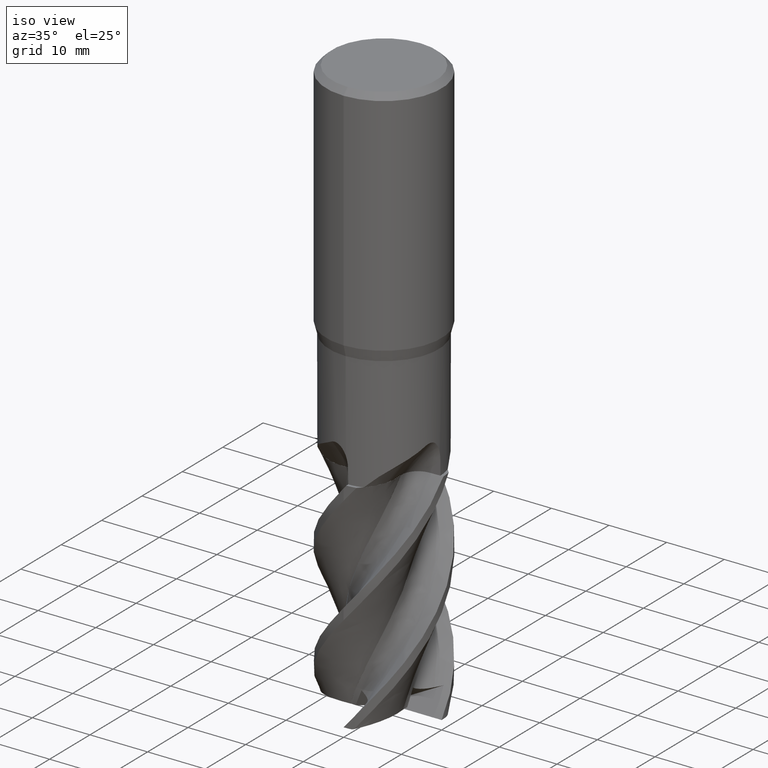
[diagram: clean part render]
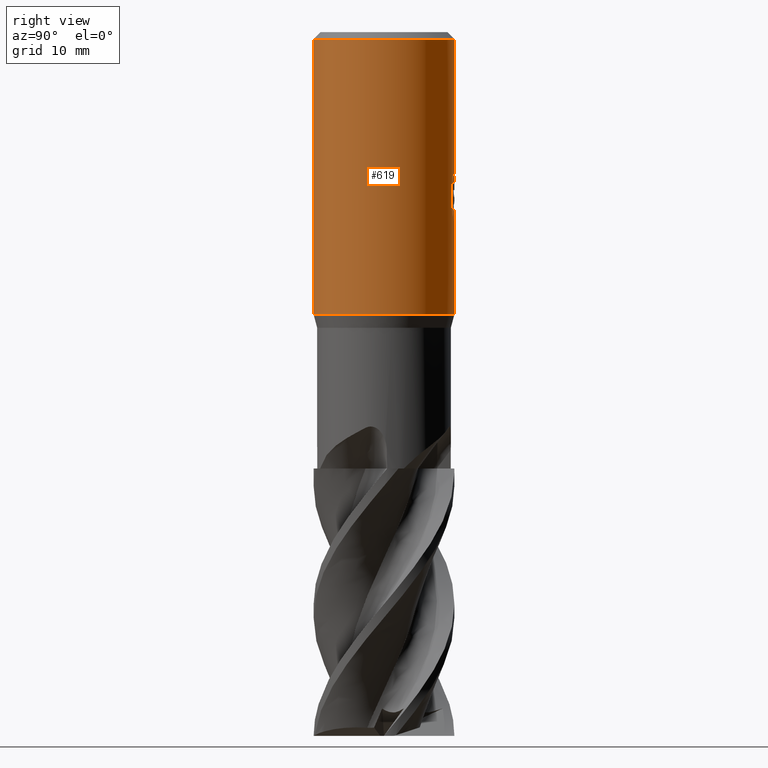
[diagram: tour spotlight — one face highlighted and labeled with its STEP entity id]
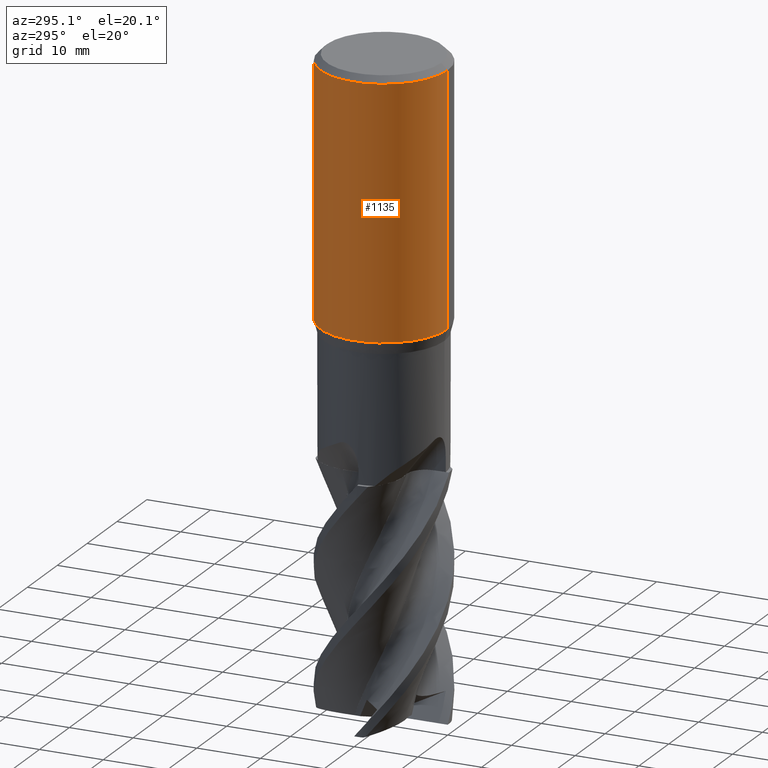
[diagram: tour spotlight — one face highlighted and labeled with its STEP entity id]
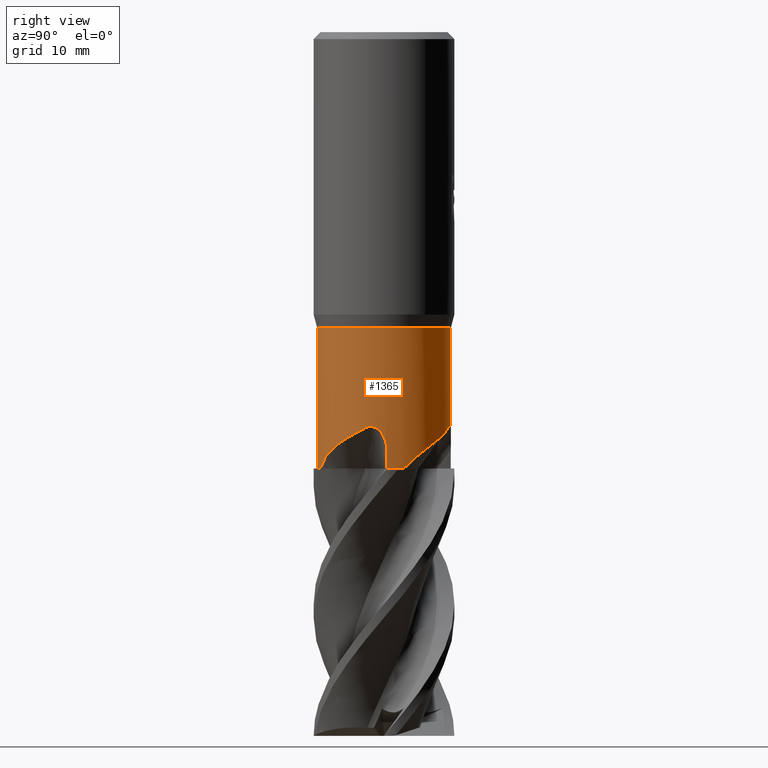
[diagram: tour spotlight — one face highlighted and labeled with its STEP entity id]
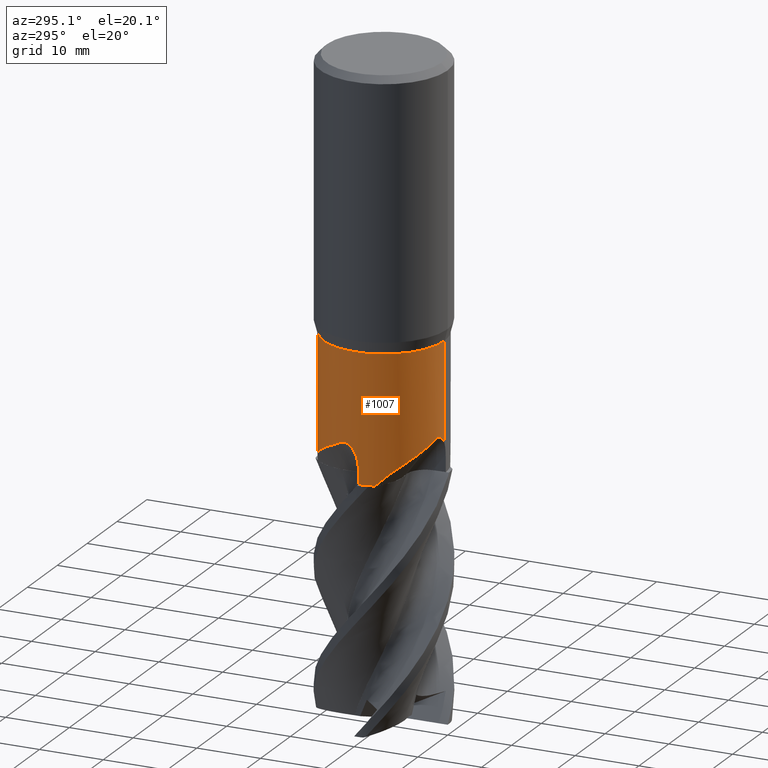
[diagram: tour spotlight — one face highlighted and labeled with its STEP entity id]
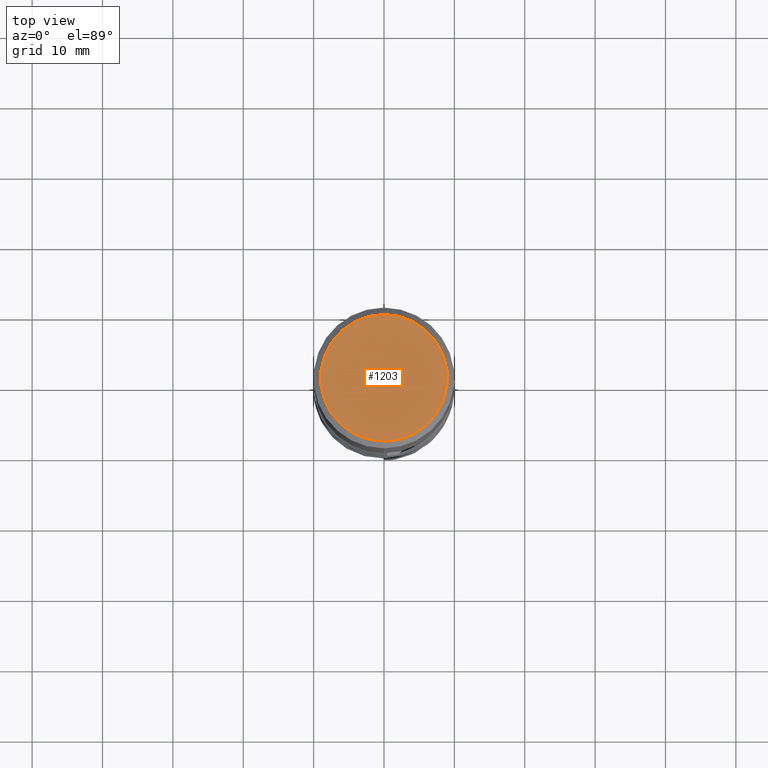
[diagram: tour spotlight — one face highlighted and labeled with its STEP entity id]
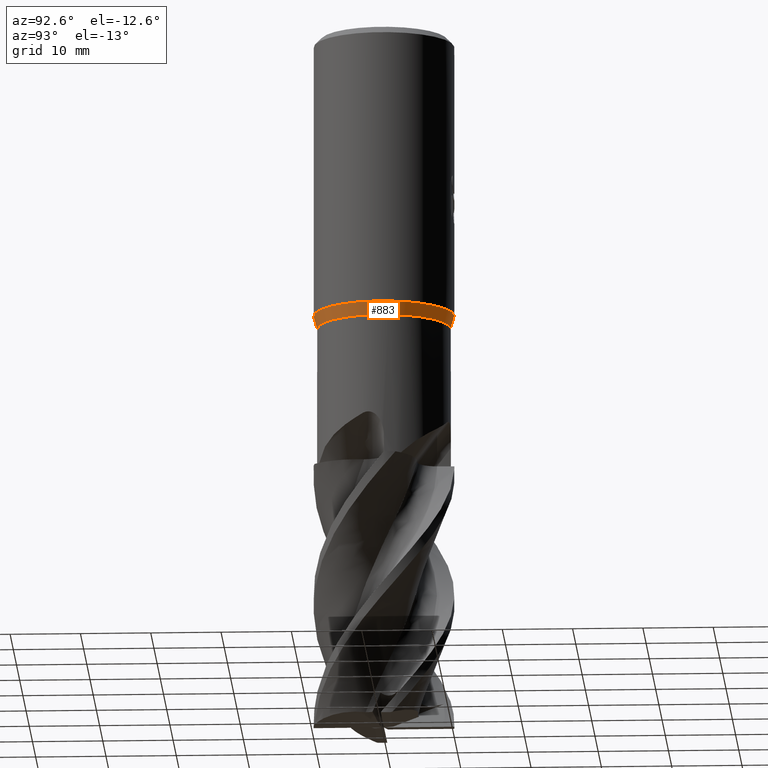
[diagram: tour spotlight — one face highlighted and labeled with its STEP entity id]
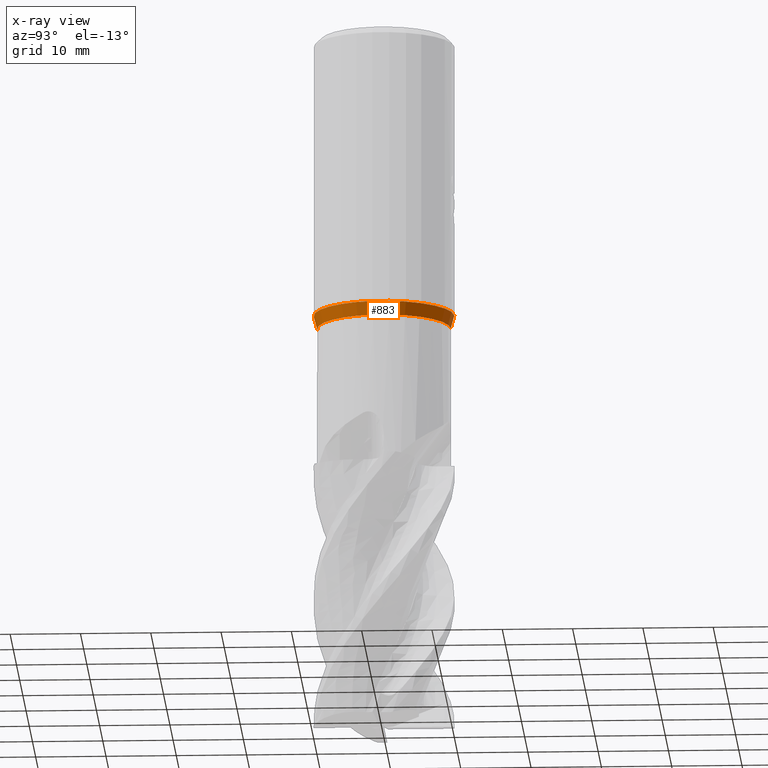
[diagram: x-ray of the same camera — body ghosted, this tour face saturated]
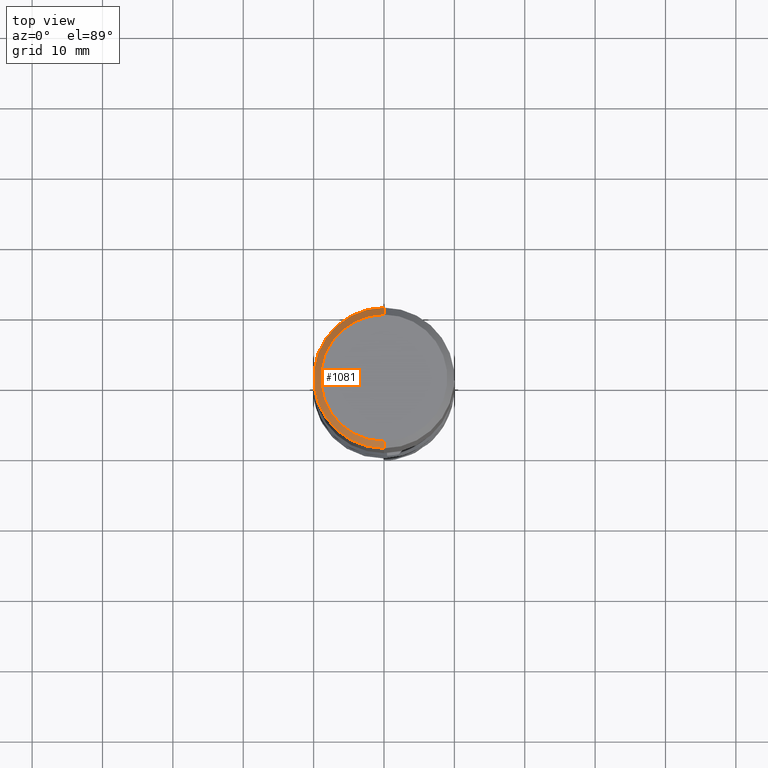
[diagram: tour spotlight — one face highlighted and labeled with its STEP entity id]
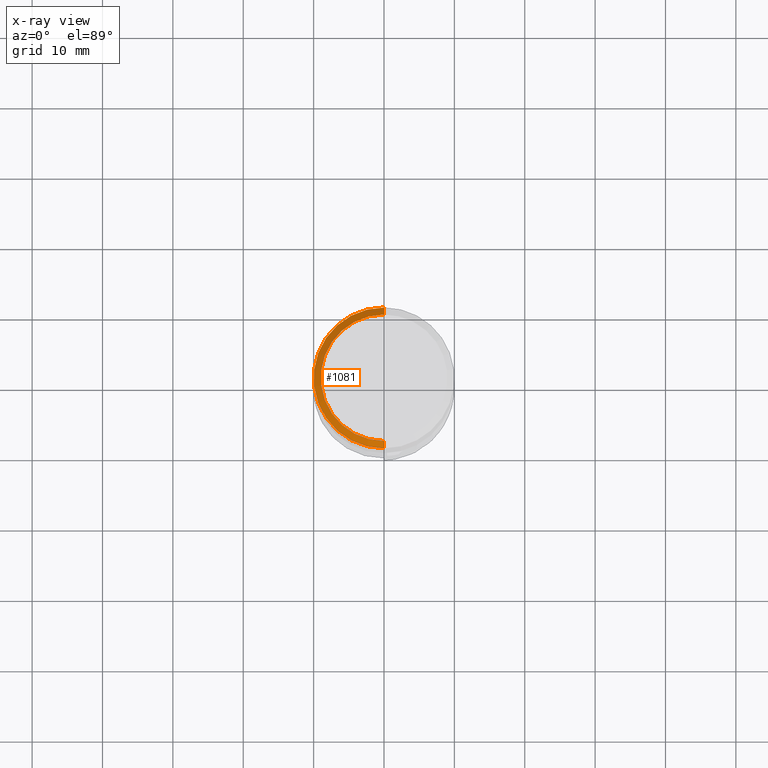
[diagram: x-ray of the same camera — body ghosted, this tour face saturated]
A machine part: a face-by-face anatomy tour. The part has 84 B-rep faces; the first image is the clean iso view, then the 7 largest visible faces are spotlighted one at a time (largest first), each with its STEP entity span.

Face 1 — right view, entity #619. In plain terms, the highlighted cylindrical surface (partial cylindrical patch) has radius 10 mm, axis along (-0, -0, 1).
Definition (entity closure, byte-faithful):
#505=EDGE_CURVE('',#863,#1347,#1460,.T.);
#555=VERTEX_POINT('',#1515);
#603=VERTEX_POINT('',#1566);
#619=ADVANCED_FACE('',(#1583,#1584),#1585,.T.);
#621=EDGE_CURVE('',#555,#1211,#1587,.T.);
#633=VERTEX_POINT('',#1599);
#697=EDGE_CURVE('',#555,#955,#1668,.T.);
#737=VERTEX_POINT('',#1711);
#817=EDGE_CURVE('',#1339,#737,#1798,.T.);
#819=EDGE_CURVE('',#835,#1395,#1800,.T.);
#825=EDGE_CURVE('',#1037,#1073,#1806,.T.);
#835=VERTEX_POINT('',#1816);
#853=VERTEX_POINT('',#1835);
#863=VERTEX_POINT('',#1845);
#885=EDGE_CURVE('',#603,#1211,#1870,.T.);
#891=EDGE_CURVE('',#853,#1251,#1876,.T.);
#909=EDGE_CURVE('',#737,#863,#1895,.T.);
#955=VERTEX_POINT('',#1944);
#957=EDGE_CURVE('',#1251,#1339,#1946,.T.);
#997=EDGE_CURVE('',#1395,#1037,#1990,.T.);
#1037=VERTEX_POINT('',#2036);
#1073=VERTEX_POINT('',#2075);
#1169=EDGE_CURVE('',#1073,#853,#2182,.T.);
#1171=EDGE_CURVE('',#1347,#633,#2184,.T.);
#1183=EDGE_CURVE('',#633,#835,#2196,.T.);
#1211=VERTEX_POINT('',#2228);
#1251=VERTEX_POINT('',#2272);
#1313=EDGE_CURVE('',#955,#603,#2341,.T.);
#1339=VERTEX_POINT('',#2368);
#1347=VERTEX_POINT('',#2377);
#1395=VERTEX_POINT('',#2433);
#1460=B_SPLINE_CURVE_WITH_KNOTS('',3,(#2496,#2497,#2498,#2499,#2500,#2501,#2502,#2503,#2504,#2505,#2506,#2507,#2508,#2509,#2510,#2511),.UNSPECIFIED.,.F.,.F.,(4,2,2,2,2,2,2,4),(13.0822518574034,13.7710650298006,14.4599721384425,15.1488792470844,15.8377863557263,16.5266934643682,17.2143253597037,17.9019572550391),.UNSPECIFIED.);
#1515=CARTESIAN_POINT('',(0.0,10.0,-1.0));
#1566=CARTESIAN_POINT('',(0.0,-10.0,-40.134));
#1583=FACE_OUTER_BOUND('',#3382,.T.);
#1584=FACE_BOUND('',#3383,.T.);
#1585=CYLINDRICAL_SURFACE('',#3384,10.0);
#1587=CIRCLE('',#3387,10.0);
#1599=CARTESIAN_POINT('',(1.94123647448504,9.80977068794826,-23.0671812432964));
#1668=LINE('',#4011,#4012);
#1711=CARTESIAN_POINT('',(0.0316227370732325,9.99995,-23.9249151718151));
#1798=ELLIPSE('',#5487,11.1492843204286,10.0);
#1800=B_SPLINE_CURVE_WITH_KNOTS('',3,(#5490,#5491,#5492,#5493,#5494,#5495,#5496,#5497,#5498,#5499),.UNSPECIFIED.,.F.,.F.,(4,2,2,2,4),(17.9019553538604,18.589587186074,19.2772190182877,19.9658198674257,20.6544207165638),.UNSPECIFIED.);
#1806=B_SPLINE_CURVE_WITH_KNOTS('',3,(#5508,#5509,#5510,#5511,#5512,#5513,#5514,#5515,#5516,#5517),.UNSPECIFIED.,.F.,.F.,(4,2,2,2,4),(1.37720174628015,2.06580261942023,2.75440349256031,3.44203534789076,4.12966720322121),.UNSPECIFIED.);
#1816=CARTESIAN_POINT('',(1.94123647448504,9.80977068794826,-26.2645919646618));
#1835=CARTESIAN_POINT('',(0.0316227370732983,9.99995,-22.4147388956793));
#1845=CARTESIAN_POINT('',(0.0316227370733076,9.99995,-26.868989219405));
#1870=LINE('',#5697,#5698);
#1876=LINE('',#5707,#5708);
#1895=LINE('',#5824,#5825);
#1944=CARTESIAN_POINT('',(-1.22460635382238E-015,10.0,-40.134));
#1946=B_SPLINE_CURVE_WITH_KNOTS('',3,(#6500,#6501,#6502,#6503,#6504,#6505,#6506,#6507,#6508,#6509,#6510,#6511,#6512,#6513,#6514,#6515,#6516,#6517,#6518,#6519,#6520,#6521,#6522,#6523),.UNSPECIFIED.,.F.,.F.,(4,2,2,2,2,2,2,2,2,2,2,4),(7.46791014288792,7.96541256832062,8.46291499375333,8.96041741918603,9.45791984461874,9.95542227005144,10.4516566009806,10.9478909319097,11.4441252628388,11.940359593768,12.4400189088529,12.9396782239377),.UNSPECIFIED.);
#1990=LINE('',#7263,#7264);
#2036=CARTESIAN_POINT('',(2.97156306317255,9.54828848336646,-21.2786463577386));
#2075=CARTESIAN_POINT('',(1.77650606405781,9.84093624633174,-20.1341006152702));
#2182=B_SPLINE_CURVE_WITH_KNOTS('',3,(#8972,#8973,#8974,#8975,#8976,#8977,#8978,#8979,#8980,#8981,#8982,#8983,#8984,#8985,#8986,#8987,#8988,#8989,#8990,#8991,#8992,#8993,#8994,#8995,#8996,#8997,#8998,#8999,#9000,#9001,#9002,#9003,#9004,#9005,#9006,#9007,#9008,#9009,#9010,#9011,#9012,#9013,#9014,#9015,#9016,#9017,#9018),.UNSPECIFIED.,.F.,.F.,(4,2,2,3,2,2,2,2,2,2,2,2,2,2,2,2,2,2,2,2,2,2,4),(-0.904505291133134,-0.603003527422089,-0.301501763711045,0.0,0.301501763711044,0.603003527422088,0.904505291133132,1.20600705484418,1.50828914510139,1.81057123535861,2.11285332561582,2.41513541587304,2.7161033583785,3.01707130088397,3.31803924338943,3.6190071858949,3.92036276204674,4.22171833819858,4.52307391435042,4.82442949050226,5.1257850666541,5.42714064280595,5.72849621895779),.UNSPECIFIED.);
#2184=ELLIPSE('',#9021,30.4799457336977,10.0);
#2196=LINE('',#9044,#9045);
#2228=CARTESIAN_POINT('',(1.22460635382238E-015,-10.0,-1.0));
#2272=CARTESIAN_POINT('',(0.031622737073116,9.99995,-23.4713864684693));
#2341=CIRCLE('',#9997,10.0);
#2368=CARTESIAN_POINT('',(1.27360926646417,9.91856438383986,-23.3125951445816));
#2377=CARTESIAN_POINT('',(0.644670391944764,9.97919836889466,-26.800361996352));
#2433=CARTESIAN_POINT('',(2.97156306317255,9.54828848336646,-25.2233316630048));
#2496=CARTESIAN_POINT('',(-3.06446514406201,9.51887878801012,-25.273424718489));
#2497=CARTESIAN_POINT('',(-2.9320737197717,9.56150028927415,-25.4699031682856));
#2498=CARTESIAN_POINT('',(-2.78221330578179,9.60659017651691,-25.6501024951607));
#2499=CARTESIAN_POINT('',(-2.46338958635805,9.6932453227427,-25.9690755115873));
#2500=CARTESIAN_POINT('',(-2.2831818263397,9.73793998544854,-26.1190893942677));
#2501=CARTESIAN_POINT('',(-1.89006279967406,9.82181536300732,-26.3842027828549));
#2502=CARTESIAN_POINT('',(-1.67714982712961,9.86092398085721,-26.4993225636327));
#2503=CARTESIAN_POINT('',(-1.23181074870496,9.92639388610597,-26.684792872199));
#2504=CARTESIAN_POINT('',(-0.998993982717713,9.95276140285555,-26.7552897100344));
#2505=CARTESIAN_POINT('',(-0.529421014680235,9.98875176931193,-26.8480203935694));
#2506=CARTESIAN_POINT('',(-0.292657869671584,9.99835406091206,-26.8702270569585));
#2507=CARTESIAN_POINT('',(0.166179351363574,10.0012460192168,-26.8702270569585));
#2508=CARTESIAN_POINT('',(0.402624036141332,9.99465558216676,-26.8481010422937));
#2509=CARTESIAN_POINT('',(0.871759467236617,9.96470178941006,-26.7555888545499));
#2510=CARTESIAN_POINT('',(1.10445661059111,9.94135916450407,-26.6852284120676));
#2511=CARTESIAN_POINT('',(1.32707291318414,9.91155272815985,-26.5926212624839));
#3382=EDGE_LOOP('',(#10879,#10880,#10881,#10882));
#3383=EDGE_LOOP('',(#10883,#10884,#10885,#10886,#10887,#10888,#10889,#10890,#10891,#10892,#10893));
#3384=AXIS2_PLACEMENT_3D('',#10894,#10895,#10896);
#3387=AXIS2_PLACEMENT_3D('',#10897,#10898,#10899);
#4011=CARTESIAN_POINT('',(-1.22460635382238E-015,10.0,-18.5));
#4012=VECTOR('',#10956,1.0);
#5487=AXIS2_PLACEMENT_3D('',#11078,#11079,#11080);
#5490=CARTESIAN_POINT('',(1.32707230434519,9.91155280967821,-26.5926202978643));
#5491=CARTESIAN_POINT('',(1.54968858822418,9.88174638975947,-26.5000131565413));
#5492=CARTESIAN_POINT('',(1.76261732954736,9.84547486421664,-26.3850111768092));
#5493=CARTESIAN_POINT('',(2.1558208181977,9.76691516051763,-26.1200979026518));
#5494=CARTESIAN_POINT('',(2.33609667584503,9.72469933721467,-25.9701668048137));
#5495=CARTESIAN_POINT('',(2.65529201735174,9.6424387829954,-25.651115396584));
#5496=CARTESIAN_POINT('',(2.80539479075921,9.59942682470555,-25.4707358291268));
#5497=CARTESIAN_POINT('',(3.07053607205005,9.51793273396483,-25.0774339467634));
#5498=CARTESIAN_POINT('',(3.18559905246021,9.47953483340649,-24.8645106814406));
#5499=CARTESIAN_POINT('',(3.27827260300342,9.44737681795308,-24.6418837227319));
#5508=CARTESIAN_POINT('',(3.27827262071743,9.44737681180625,-21.8600943288251));
#5509=CARTESIAN_POINT('',(3.1855990669218,9.47953482858295,-21.6374673624082));
#5510=CARTESIAN_POINT('',(3.07053608247661,9.51793273067253,-21.4245440897205));
#5511=CARTESIAN_POINT('',(2.8053947918722,9.59942682445104,-21.0312421937498));
#5512=CARTESIAN_POINT('',(2.65529201318479,9.64243878424179,-20.8508626200498));
#5513=CARTESIAN_POINT('',(2.33609666059918,9.72469934097143,-20.5318112009682));
#5514=CARTESIAN_POINT('',(2.15582079680068,9.7669151653786,-20.3818800981016));
#5515=CARTESIAN_POINT('',(1.76261729473314,9.84547487058633,-20.1169668150525));
#5516=CARTESIAN_POINT('',(1.54968854614356,9.88174639652917,-20.0019648314569));
#5517=CARTESIAN_POINT('',(1.32707225468129,9.91155281632778,-19.909357687029));
#5697=CARTESIAN_POINT('',(1.22460635382238E-015,-10.0,-18.5));
#5698=VECTOR('',#11134,1.0);
#5707=CARTESIAN_POINT('',(0.0316227370732325,9.99995,-23.5021638361144));
#5708=VECTOR('',#11136,1.0);
#5824=CARTESIAN_POINT('',(0.0316227370732325,9.99995,-23.5021638361144));
#5825=VECTOR('',#11145,1.0);
#6500=CARTESIAN_POINT('',(-2.25082235878216,9.74339769840102,-20.3519143059435));
#6501=CARTESIAN_POINT('',(-2.28428747604402,9.73566692148997,-20.522085013128));
#6502=CARTESIAN_POINT('',(-2.30023075964271,9.73185174837726,-20.6933774783232));
#6503=CARTESIAN_POINT('',(-2.30023075964271,9.73185174837726,-21.025045761945));
#6504=CARTESIAN_POINT('',(-2.28428747604402,9.73566692148997,-21.1963382271401));
#6505=CARTESIAN_POINT('',(-2.2173572415203,9.75112847531207,-21.5366796415091));
#6506=CARTESIAN_POINT('',(-2.16638705772463,9.76276094609619,-21.7057325196037));
#6507=CARTESIAN_POINT('',(-2.03184405267153,9.79164662722868,-22.0296449797371));
#6508=CARTESIAN_POINT('',(-1.94816459135741,9.80888962566933,-22.1847739246349));
#6509=CARTESIAN_POINT('',(-1.75498328939114,9.845287939757,-22.4715167437536));
#6510=CARTESIAN_POINT('',(-1.6454670217229,9.864399219561,-22.6031264862566));
#6511=CARTESIAN_POINT('',(-1.41245757243044,9.9004457650828,-22.8357869276279));
#6512=CARTESIAN_POINT('',(-1.28096853055741,9.91866458537594,-22.9449300875257));
#6513=CARTESIAN_POINT('',(-0.994483240421608,9.95147178149252,-23.1374771683638));
#6514=CARTESIAN_POINT('',(-0.839491019745938,9.96601953281724,-23.2208940012736));
#6515=CARTESIAN_POINT('',(-0.515949704964202,9.98799711651423,-23.3549762826222));
#6516=CARTESIAN_POINT('',(-0.347124906267057,9.99541714560543,-23.4057510345697));
#6517=CARTESIAN_POINT('',(-0.0074159358988774,10.0014401272571,-23.4723881929454));
#6518=CARTESIAN_POINT('',(0.163471348702013,10.0000319031412,-23.4882357388639));
#6519=CARTESIAN_POINT('',(0.495256413593663,9.98911712923564,-23.4882357388639));
#6520=CARTESIAN_POINT('',(0.666997772528586,9.97919681274295,-23.4721726138028));
#6521=CARTESIAN_POINT('',(1.00787833561816,9.95054954847196,-23.4049513896908));
#6522=CARTESIAN_POINT('',(1.17702218704656,9.93183333834353,-23.3538122829361));
#6523=CARTESIAN_POINT('',(1.33893612023061,9.90995711726049,-23.2864280132421));
#7263=CARTESIAN_POINT('',(2.97156306317255,9.54828848336646,-23.2509890103717));
#7264=VECTOR('',#11217,1.0);
#8972=CARTESIAN_POINT('',(1.67365635312713,9.8589489506558,-19.9576916416845));
#8973=CARTESIAN_POINT('',(1.73216521933342,9.84901647853448,-20.0447376309277));
#8974=CARTESIAN_POINT('',(1.7828552792778,9.83987519379184,-20.1389160452899));
#8975=CARTESIAN_POINT('',(1.8643343029579,9.8247633269446,-20.3355063371222));
#8976=CARTESIAN_POINT('',(1.89518824545534,9.81879255328383,-20.4380797030206));
#8977=CARTESIAN_POINT('',(1.93568871663788,9.81088858781735,-20.6445034403594));
#8978=CARTESIAN_POINT('',(1.94532578610213,9.80896057622448,-20.7483558659094));
#8979=CARTESIAN_POINT('',(1.94532578610213,9.80896057622448,-20.8488564538131));
#8980=CARTESIAN_POINT('',(1.94532578610213,9.80896057622448,-20.9493570417168));
#8981=CARTESIAN_POINT('',(1.93568871663788,9.81088858781735,-21.0532094672668));
#8982=CARTESIAN_POINT('',(1.89518824545534,9.81879255328383,-21.2596332046056));
#8983=CARTESIAN_POINT('',(1.8643343029579,9.8247633269446,-21.362206570504));
#8984=CARTESIAN_POINT('',(1.7828552792778,9.83987519379184,-21.5587968623364));
#8985=CARTESIAN_POINT('',(1.73216521933342,9.84901647853448,-21.6529752766985));
#8986=CARTESIAN_POINT('',(1.61514748692084,9.86888142277713,-21.827067255185));
#8987=CARTESIAN_POINT('',(1.54881208741372,9.87958907652498,-21.9069774513826));
#8988=CARTESIAN_POINT('',(1.40738081907563,9.90072749156307,-22.0485983130075));
#8989=CARTESIAN_POINT('',(1.32737645363825,9.9119011636308,-22.1151561512742));
#8990=CARTESIAN_POINT('',(1.15308601745526,9.93368539684901,-22.2325425786129));
#8991=CARTESIAN_POINT('',(1.05880343384493,9.9442802848895,-22.283379253119));
#8992=CARTESIAN_POINT('',(0.861979302886534,9.96327088742385,-22.365097709858));
#8993=CARTESIAN_POINT('',(0.759279399619751,9.97167109273908,-22.3960433170591));
#8994=CARTESIAN_POINT('',(0.552558074036873,9.98525959418546,-22.4366732810771));
#8995=CARTESIAN_POINT('',(0.448534408730358,9.99044391417093,-22.4463475548254));
#8996=CARTESIAN_POINT('',(0.247572745624131,9.99743829034348,-22.4463475548254));
#8997=CARTESIAN_POINT('',(0.143876534922301,9.99949682821298,-22.4367557457008));
#8998=CARTESIAN_POINT('',(-0.0623960826390278,10.0003371944957,-22.3963492019081));
#8999=CARTESIAN_POINT('',(-0.164974124788218,9.9991231787575,-22.3655429022769));
#9000=CARTESIAN_POINT('',(-0.361688059604385,9.99394129229172,-22.2840874909763));
#9001=CARTESIAN_POINT('',(-0.455985213521121,9.98998002787405,-22.2333725008394));
#9002=CARTESIAN_POINT('',(-0.630352418812514,9.98049494265621,-22.1162005679278));
#9003=CARTESIAN_POINT('',(-0.710418326253499,9.97498660802636,-22.0497362054942));
#9004=CARTESIAN_POINT('',(-0.852230319266297,9.96387316927875,-21.908045512559));
#9005=CARTESIAN_POINT('',(-0.918818211604656,9.95787383594858,-21.8279482867737));
#9006=CARTESIAN_POINT('',(-1.03620650858128,9.94634376594329,-21.6535056644331));
#9007=CARTESIAN_POINT('',(-1.08701469426457,9.94082924194843,-21.559164432889));
#9008=CARTESIAN_POINT('',(-1.16863624065971,9.93156464655366,-21.3623212183193));
#9009=CARTESIAN_POINT('',(-1.19951446311002,9.9278185725588,-21.2596604482578));
#9010=CARTESIAN_POINT('',(-1.24002911157514,9.92283953107122,-21.0531549399398));
#9011=CARTESIAN_POINT('',(-1.24965641592239,9.92161069797359,-20.9493083125304));
#9012=CARTESIAN_POINT('',(-1.24965641592239,9.92161069797359,-20.7484045950958));
#9013=CARTESIAN_POINT('',(-1.24002911157514,9.92283953107122,-20.6445579676864));
#9014=CARTESIAN_POINT('',(-1.19951446311002,9.9278185725588,-20.4380524593685));
#9015=CARTESIAN_POINT('',(-1.16863624065971,9.93156464655366,-20.335391689307));
#9016=CARTESIAN_POINT('',(-1.08701469426457,9.94082924194843,-20.1385484747373));
#9017=CARTESIAN_POINT('',(-1.03620650858128,9.94634376594329,-20.0442072431931));
#9018=CARTESIAN_POINT('',(-0.977512360092972,9.95210880094593,-19.9569859320228));
#9021=AXIS2_PLACEMENT_3D('',#11432,#11433,#11434);
#9044=CARTESIAN_POINT('',(1.94123647448504,9.80977068794826,-24.6658866039791));
#9045=VECTOR('',#11437,1.0);
#9997=AXIS2_PLACEMENT_3D('',#11610,#11611,#11612);
#10879=ORIENTED_EDGE('',*,*,#697,.F.);
#10880=ORIENTED_EDGE('',*,*,#621,.T.);
#10881=ORIENTED_EDGE('',*,*,#885,.F.);
#10882=ORIENTED_EDGE('',*,*,#1313,.F.);
#10883=ORIENTED_EDGE('',*,*,#817,.T.);
#10884=ORIENTED_EDGE('',*,*,#909,.T.);
#10885=ORIENTED_EDGE('',*,*,#505,.T.);
#10886=ORIENTED_EDGE('',*,*,#1171,.T.);
#10887=ORIENTED_EDGE('',*,*,#1183,.T.);
#10888=ORIENTED_EDGE('',*,*,#819,.T.);
#10889=ORIENTED_EDGE('',*,*,#997,.T.);
#10890=ORIENTED_EDGE('',*,*,#825,.T.);
#10891=ORIENTED_EDGE('',*,*,#1169,.T.);
#10892=ORIENTED_EDGE('',*,*,#891,.T.);
#10893=ORIENTED_EDGE('',*,*,#957,.T.);
#10894=CARTESIAN_POINT('',(0.0,0.0,-18.5));
#10895=DIRECTION('',(-0.0,-0.0,1.0));
#10896=DIRECTION('',(0.0,1.0,0.0));
#10897=CARTESIAN_POINT('',(0.0,0.0,-1.0));
#10898=DIRECTION('',(0.0,0.0,-1.0));
#10899=DIRECTION('',(0.0,1.0,0.0));
#10956=DIRECTION('',(0.0,0.0,-1.0));
#11078=CARTESIAN_POINT('',(0.0,0.0,-23.9405057074349));
#11079=DIRECTION('',(-0.442195774284071,0.0,0.896918556617774));
#11080=DIRECTION('',(0.896918556617774,-0.0,0.442195774284071));
#11134=DIRECTION('',(-0.0,-0.0,1.0));
#11136=DIRECTION('',(0.0,0.0,-1.0));
#11145=DIRECTION('',(0.0,0.0,-1.0));
#11217=DIRECTION('',(-0.0,-0.0,1.0));
#11432=CARTESIAN_POINT('',(0.0,0.0,-28.6565505328882));
#11433=DIRECTION('',(0.944648353914092,0.0,-0.328084573619969));
#11434=DIRECTION('',(0.328084573619969,-0.0,0.944648353914092));
#11437=DIRECTION('',(0.0,0.0,-1.0));
#11610=CARTESIAN_POINT('',(0.0,0.0,-40.134));
#11611=DIRECTION('',(0.0,0.0,-1.0));
#11612=DIRECTION('',(0.0,-1.0,0.0));

Face 2 — auxiliary view, entity #1135. In plain terms, the highlighted cylindrical surface (partial cylindrical patch) has radius 10 mm, axis along (-0, -0, 1).
Definition (entity closure, byte-faithful):
#531=VERTEX_POINT('',#1489);
#555=VERTEX_POINT('',#1515);
#561=EDGE_CURVE('',#689,#531,#1521,.T.);
#587=VERTEX_POINT('',#1550);
#603=VERTEX_POINT('',#1566);
#685=VERTEX_POINT('',#1656);
#689=VERTEX_POINT('',#1660);
#697=EDGE_CURVE('',#555,#955,#1668,.T.);
#765=EDGE_CURVE('',#1211,#555,#1742,.T.);
#827=VERTEX_POINT('',#1808);
#885=EDGE_CURVE('',#603,#1211,#1870,.T.);
#919=EDGE_CURVE('',#531,#1085,#1905,.T.);
#955=VERTEX_POINT('',#1944);
#1039=EDGE_CURVE('',#587,#1321,#2038,.T.);
#1055=EDGE_CURVE('',#1321,#685,#2055,.T.);
#1085=VERTEX_POINT('',#2089);
#1135=ADVANCED_FACE('',(#2142,#2143,#2144),#2145,.T.);
#1185=EDGE_CURVE('',#1085,#827,#2198,.T.);
#1211=VERTEX_POINT('',#2228);
#1253=VERTEX_POINT('',#2274);
#1257=EDGE_CURVE('',#603,#955,#2278,.T.);
#1321=VERTEX_POINT('',#2349);
#1357=EDGE_CURVE('',#1253,#689,#2389,.T.);
#1373=EDGE_CURVE('',#827,#1253,#2409,.T.);
#1399=EDGE_CURVE('',#685,#587,#2437,.T.);
#1489=CARTESIAN_POINT('',(-0.0316227370733057,9.99995,-22.4006263731564));
#1515=CARTESIAN_POINT('',(0.0,10.0,-1.0));
#1521=LINE('',#3270,#3271);
#1550=CARTESIAN_POINT('',(-0.0316227370732903,9.99995,-26.8700908087156));
#1566=CARTESIAN_POINT('',(0.0,-10.0,-40.134));
#1656=CARTESIAN_POINT('',(-2.97121348113491,9.54839727124517,-25.4053633984255));
#1660=CARTESIAN_POINT('',(-0.0316227370731128,9.99995,-23.4634136196901));
#1668=LINE('',#4011,#4012);
#1742=CIRCLE('',#4766,10.0);
#1808=CARTESIAN_POINT('',(-1.24962484061532,9.92161467492651,-20.8388124731723));
#1870=LINE('',#5697,#5698);
#1905=B_SPLINE_CURVE_WITH_KNOTS('',3,(#5928,#5929,#5930,#5931,#5932,#5933,#5934,#5935,#5936,#5937,#5938,#5939,#5940,#5941,#5942,#5943,#5944,#5945,#5946,#5947,#5948,#5949,#5950,#5951,#5952,#5953,#5954,#5955,#5956,#5957,#5958,#5959,#5960,#5961,#5962,#5963,#5964,#5965,#5966,#5967,#5968,#5969,#5970,#5971,#5972,#5973,#5974),.UNSPECIFIED.,.F.,.F.,(4,2,2,3,2,2,2,2,2,2,2,2,2,2,2,2,2,2,2,2,2,2,4),(-0.904505291133134,-0.603003527422089,-0.301501763711045,0.0,0.301501763711044,0.603003527422088,0.904505291133132,1.20600705484418,1.50828914510139,1.81057123535861,2.11285332561582,2.41513541587304,2.7161033583785,3.01707130088397,3.31803924338943,3.6190071858949,3.92036276204674,4.22171833819858,4.52307391435042,4.82442949050226,5.1257850666541,5.42714064280595,5.72849621895779),.UNSPECIFIED.);
#1944=CARTESIAN_POINT('',(-1.22460635382238E-015,10.0,-40.134));
#2038=LINE('',#8141,#8142);
#2055=ELLIPSE('',#8174,11.1492843204286,10.0);
#2089=CARTESIAN_POINT('',(-1.08083669387807,9.94141800957825,-21.563612292356));
#2142=FACE_OUTER_BOUND('',#8692,.T.);
#2143=FACE_BOUND('',#8693,.T.);
#2144=FACE_BOUND('',#8694,.T.);
#2145=CYLINDRICAL_SURFACE('',#8695,10.0);
#2198=B_SPLINE_CURVE_WITH_KNOTS('',3,(#9048,#9049,#9050,#9051,#9052,#9053,#9054,#9055,#9056,#9057,#9058,#9059,#9060,#9061,#9062,#9063,#9064,#9065,#9066,#9067,#9068,#9069,#9070,#9071,#9072,#9073,#9074,#9075,#9076,#9077,#9078,#9079,#9080,#9081,#9082,#9083,#9084,#9085,#9086,#9087,#9088,#9089,#9090,#9091,#9092,#9093,#9094),.UNSPECIFIED.,.F.,.F.,(4,2,2,3,2,2,2,2,2,2,2,2,2,2,2,2,2,2,2,2,2,2,4),(-0.904505291133134,-0.603003527422089,-0.301501763711045,0.0,0.301501763711044,0.603003527422088,0.904505291133132,1.20600705484418,1.50828914510139,1.81057123535861,2.11285332561582,2.41513541587304,2.7161033583785,3.01707130088397,3.31803924338943,3.6190071858949,3.92036276204674,4.22171833819858,4.52307391435042,4.82442949050226,5.1257850666541,5.42714064280595,5.72849621895779),.UNSPECIFIED.);
#2228=CARTESIAN_POINT('',(1.22460635382238E-015,-10.0,-1.0));
#2274=CARTESIAN_POINT('',(-2.30015161783164,9.73187045407955,-20.8388124731723));
#2278=CIRCLE('',#9551,10.0);
#2349=CARTESIAN_POINT('',(-0.0316227370732325,9.99995,-23.9560962430548));
#2389=B_SPLINE_CURVE_WITH_KNOTS('',3,(#10077,#10078,#10079,#10080,#10081,#10082,#10083,#10084,#10085,#10086,#10087,#10088,#10089,#10090,#10091,#10092,#10093,#10094,#10095,#10096,#10097,#10098,#10099,#10100),.UNSPECIFIED.,.F.,.F.,(4,2,2,2,2,2,2,2,2,2,2,4),(7.46791014288792,7.96541256832062,8.46291499375333,8.96041741918603,9.45791984461874,9.95542227005144,10.4516566009806,10.9478909319097,11.4441252628388,11.940359593768,12.4400189088529,12.9396782239377),.UNSPECIFIED.);
#2409=CIRCLE('',#10186,10.0);
#2437=B_SPLINE_CURVE_WITH_KNOTS('',3,(#10475,#10476,#10477,#10478,#10479,#10480,#10481,#10482,#10483,#10484,#10485,#10486,#10487,#10488,#10489,#10490),.UNSPECIFIED.,.F.,.F.,(4,2,2,2,2,2,2,4),(13.0822518574034,13.7710650298006,14.4599721384425,15.1488792470844,15.8377863557263,16.5266934643682,17.2143253597037,17.9019572550391),.UNSPECIFIED.);
#3270=CARTESIAN_POINT('',(-0.0316227370732325,9.99995,-23.5021638361144));
#3271=VECTOR('',#10809,1.0);
#4011=CARTESIAN_POINT('',(-1.22460635382238E-015,10.0,-18.5));
#4012=VECTOR('',#10956,1.0);
#4766=AXIS2_PLACEMENT_3D('',#11034,#11035,#11036);
#5697=CARTESIAN_POINT('',(1.22460635382238E-015,-10.0,-18.5));
#5698=VECTOR('',#11134,1.0);
#5928=CARTESIAN_POINT('',(1.67365635312713,9.8589489506558,-19.9576916416845));
#5929=CARTESIAN_POINT('',(1.73216521933342,9.84901647853448,-20.0447376309277));
#5930=CARTESIAN_POINT('',(1.7828552792778,9.83987519379184,-20.1389160452899));
#5931=CARTESIAN_POINT('',(1.8643343029579,9.8247633269446,-20.3355063371222));
#5932=CARTESIAN_POINT('',(1.89518824545534,9.81879255328383,-20.4380797030206));
#5933=CARTESIAN_POINT('',(1.93568871663788,9.81088858781735,-20.6445034403594));
#5934=CARTESIAN_POINT('',(1.94532578610213,9.80896057622448,-20.7483558659094));
#5935=CARTESIAN_POINT('',(1.94532578610213,9.80896057622448,-20.8488564538131));
#5936=CARTESIAN_POINT('',(1.94532578610213,9.80896057622448,-20.9493570417168));
#5937=CARTESIAN_POINT('',(1.93568871663788,9.81088858781735,-21.0532094672668));
#5938=CARTESIAN_POINT('',(1.89518824545534,9.81879255328383,-21.2596332046056));
#5939=CARTESIAN_POINT('',(1.8643343029579,9.8247633269446,-21.362206570504));
#5940=CARTESIAN_POINT('',(1.7828552792778,9.83987519379184,-21.5587968623364));
#5941=CARTESIAN_POINT('',(1.73216521933342,9.84901647853448,-21.6529752766985));
#5942=CARTESIAN_POINT('',(1.61514748692084,9.86888142277713,-21.827067255185));
#5943=CARTESIAN_POINT('',(1.54881208741372,9.87958907652498,-21.9069774513826));
#5944=CARTESIAN_POINT('',(1.40738081907563,9.90072749156307,-22.0485983130075));
#5945=CARTESIAN_POINT('',(1.32737645363825,9.9119011636308,-22.1151561512742));
#5946=CARTESIAN_POINT('',(1.15308601745526,9.93368539684901,-22.2325425786129));
#5947=CARTESIAN_POINT('',(1.05880343384493,9.9442802848895,-22.283379253119));
#5948=CARTESIAN_POINT('',(0.861979302886534,9.96327088742385,-22.365097709858));
#5949=CARTESIAN_POINT('',(0.759279399619751,9.97167109273908,-22.3960433170591));
#5950=CARTESIAN_POINT('',(0.552558074036873,9.98525959418546,-22.4366732810771));
#5951=CARTESIAN_POINT('',(0.448534408730358,9.99044391417093,-22.4463475548254));
#5952=CARTESIAN_POINT('',(0.247572745624131,9.99743829034348,-22.4463475548254));
#5953=CARTESIAN_POINT('',(0.143876534922301,9.99949682821298,-22.4367557457008));
#5954=CARTESIAN_POINT('',(-0.0623960826390278,10.0003371944957,-22.3963492019081));
#5955=CARTESIAN_POINT('',(-0.164974124788218,9.9991231787575,-22.3655429022769));
#5956=CARTESIAN_POINT('',(-0.361688059604385,9.99394129229172,-22.2840874909763));
#5957=CARTESIAN_POINT('',(-0.455985213521121,9.98998002787405,-22.2333725008394));
#5958=CARTESIAN_POINT('',(-0.630352418812514,9.98049494265621,-22.1162005679278));
#5959=CARTESIAN_POINT('',(-0.710418326253499,9.97498660802636,-22.0497362054942));
#5960=CARTESIAN_POINT('',(-0.852230319266297,9.96387316927875,-21.908045512559));
#5961=CARTESIAN_POINT('',(-0.918818211604656,9.95787383594858,-21.8279482867737));
#5962=CARTESIAN_POINT('',(-1.03620650858128,9.94634376594329,-21.6535056644331));
#5963=CARTESIAN_POINT('',(-1.08701469426457,9.94082924194843,-21.559164432889));
#5964=CARTESIAN_POINT('',(-1.16863624065971,9.93156464655366,-21.3623212183193));
#5965=CARTESIAN_POINT('',(-1.19951446311002,9.9278185725588,-21.2596604482578));
#5966=CARTESIAN_POINT('',(-1.24002911157514,9.92283953107122,-21.0531549399398));
#5967=CARTESIAN_POINT('',(-1.24965641592239,9.92161069797359,-20.9493083125304));
#5968=CARTESIAN_POINT('',(-1.24965641592239,9.92161069797359,-20.7484045950958));
#5969=CARTESIAN_POINT('',(-1.24002911157514,9.92283953107122,-20.6445579676864));
#5970=CARTESIAN_POINT('',(-1.19951446311002,9.9278185725588,-20.4380524593685));
#5971=CARTESIAN_POINT('',(-1.16863624065971,9.93156464655366,-20.335391689307));
#5972=CARTESIAN_POINT('',(-1.08701469426457,9.94082924194843,-20.1385484747373));
#5973=CARTESIAN_POINT('',(-1.03620650858128,9.94634376594329,-20.0442072431931));
#5974=CARTESIAN_POINT('',(-0.977512360092972,9.95210880094593,-19.9569859320228));
#8141=CARTESIAN_POINT('',(-0.0316227370732325,9.99995,-23.5021638361144));
#8142=VECTOR('',#11292,1.0);
#8174=AXIS2_PLACEMENT_3D('',#11308,#11309,#11310);
#8692=EDGE_LOOP('',(#11389,#11390,#11391,#11392));
#8693=EDGE_LOOP('',(#11393,#11394,#11395));
#8694=EDGE_LOOP('',(#11396,#11397,#11398,#11399,#11400));
#8695=AXIS2_PLACEMENT_3D('',#11401,#11402,#11403);
#9048=CARTESIAN_POINT('',(1.67365635312713,9.8589489506558,-19.9576916416845));
#9049=CARTESIAN_POINT('',(1.73216521933342,9.84901647853448,-20.0447376309277));
#9050=CARTESIAN_POINT('',(1.7828552792778,9.83987519379184,-20.1389160452899));
#9051=CARTESIAN_POINT('',(1.8643343029579,9.8247633269446,-20.3355063371222));
#9052=CARTESIAN_POINT('',(1.89518824545534,9.81879255328383,-20.4380797030206));
#9053=CARTESIAN_POINT('',(1.93568871663788,9.81088858781735,-20.6445034403594));
#9054=CARTESIAN_POINT('',(1.94532578610213,9.80896057622448,-20.7483558659094));
#9055=CARTESIAN_POINT('',(1.94532578610213,9.80896057622448,-20.8488564538131));
#9056=CARTESIAN_POINT('',(1.94532578610213,9.80896057622448,-20.9493570417168));
#9057=CARTESIAN_POINT('',(1.93568871663788,9.81088858781735,-21.0532094672668));
#9058=CARTESIAN_POINT('',(1.89518824545534,9.81879255328383,-21.2596332046056));
#9059=CARTESIAN_POINT('',(1.8643343029579,9.8247633269446,-21.362206570504));
#9060=CARTESIAN_POINT('',(1.7828552792778,9.83987519379184,-21.5587968623364));
#9061=CARTESIAN_POINT('',(1.73216521933342,9.84901647853448,-21.6529752766985));
#9062=CARTESIAN_POINT('',(1.61514748692084,9.86888142277713,-21.827067255185));
#9063=CARTESIAN_POINT('',(1.54881208741372,9.87958907652498,-21.9069774513826));
#9064=CARTESIAN_POINT('',(1.40738081907563,9.90072749156307,-22.0485983130075));
#9065=CARTESIAN_POINT('',(1.32737645363825,9.9119011636308,-22.1151561512742));
#9066=CARTESIAN_POINT('',(1.15308601745526,9.93368539684901,-22.2325425786129));
#9067=CARTESIAN_POINT('',(1.05880343384493,9.9442802848895,-22.283379253119));
#9068=CARTESIAN_POINT('',(0.861979302886534,9.96327088742385,-22.365097709858));
#9069=CARTESIAN_POINT('',(0.759279399619751,9.97167109273908,-22.3960433170591));
#9070=CARTESIAN_POINT('',(0.552558074036873,9.98525959418546,-22.4366732810771));
#9071=CARTESIAN_POINT('',(0.448534408730358,9.99044391417093,-22.4463475548254));
#9072=CARTESIAN_POINT('',(0.247572745624131,9.99743829034348,-22.4463475548254));
#9073=CARTESIAN_POINT('',(0.143876534922301,9.99949682821298,-22.4367557457008));
#9074=CARTESIAN_POINT('',(-0.0623960826390278,10.0003371944957,-22.3963492019081));
#9075=CARTESIAN_POINT('',(-0.164974124788218,9.9991231787575,-22.3655429022769));
#9076=CARTESIAN_POINT('',(-0.361688059604385,9.99394129229172,-22.2840874909763));
#9077=CARTESIAN_POINT('',(-0.455985213521121,9.98998002787405,-22.2333725008394));
#9078=CARTESIAN_POINT('',(-0.630352418812514,9.98049494265621,-22.1162005679278));
#9079=CARTESIAN_POINT('',(-0.710418326253499,9.97498660802636,-22.0497362054942));
#9080=CARTESIAN_POINT('',(-0.852230319266297,9.96387316927875,-21.908045512559));
#9081=CARTESIAN_POINT('',(-0.918818211604656,9.95787383594858,-21.8279482867737));
#9082=CARTESIAN_POINT('',(-1.03620650858128,9.94634376594329,-21.6535056644331));
#9083=CARTESIAN_POINT('',(-1.08701469426457,9.94082924194843,-21.559164432889));
#9084=CARTESIAN_POINT('',(-1.16863624065971,9.93156464655366,-21.3623212183193));
#9085=CARTESIAN_POINT('',(-1.19951446311002,9.9278185725588,-21.2596604482578));
#9086=CARTESIAN_POINT('',(-1.24002911157514,9.92283953107122,-21.0531549399398));
#9087=CARTESIAN_POINT('',(-1.24965641592239,9.92161069797359,-20.9493083125304));
#9088=CARTESIAN_POINT('',(-1.24965641592239,9.92161069797359,-20.7484045950958));
#9089=CARTESIAN_POINT('',(-1.24002911157514,9.92283953107122,-20.6445579676864));
#9090=CARTESIAN_POINT('',(-1.19951446311002,9.9278185725588,-20.4380524593685));
#9091=CARTESIAN_POINT('',(-1.16863624065971,9.93156464655366,-20.335391689307));
#9092=CARTESIAN_POINT('',(-1.08701469426457,9.94082924194843,-20.1385484747373));
#9093=CARTESIAN_POINT('',(-1.03620650858128,9.94634376594329,-20.0442072431931));
#9094=CARTESIAN_POINT('',(-0.977512360092972,9.95210880094593,-19.9569859320228));
#9551=AXIS2_PLACEMENT_3D('',#11525,#11526,#11527);
#10077=CARTESIAN_POINT('',(-2.25082235878216,9.74339769840102,-20.3519143059435));
#10078=CARTESIAN_POINT('',(-2.28428747604402,9.73566692148997,-20.522085013128));
#10079=CARTESIAN_POINT('',(-2.30023075964271,9.73185174837726,-20.6933774783232));
#10080=CARTESIAN_POINT('',(-2.30023075964271,9.73185174837726,-21.025045761945));
#10081=CARTESIAN_POINT('',(-2.28428747604402,9.73566692148997,-21.1963382271401));
#10082=CARTESIAN_POINT('',(-2.2173572415203,9.75112847531207,-21.5366796415091));
#10083=CARTESIAN_POINT('',(-2.16638705772463,9.76276094609619,-21.7057325196037));
#10084=CARTESIAN_POINT('',(-2.03184405267153,9.79164662722868,-22.0296449797371));
#10085=CARTESIAN_POINT('',(-1.94816459135741,9.80888962566933,-22.1847739246349));
#10086=CARTESIAN_POINT('',(-1.75498328939114,9.845287939757,-22.4715167437536));
#10087=CARTESIAN_POINT('',(-1.6454670217229,9.864399219561,-22.6031264862566));
#10088=CARTESIAN_POINT('',(-1.41245757243044,9.9004457650828,-22.8357869276279));
#10089=CARTESIAN_POINT('',(-1.28096853055741,9.91866458537594,-22.9449300875257));
#10090=CARTESIAN_POINT('',(-0.994483240421608,9.95147178149252,-23.1374771683638));
#10091=CARTESIAN_POINT('',(-0.839491019745938,9.96601953281724,-23.2208940012736));
#10092=CARTESIAN_POINT('',(-0.515949704964202,9.98799711651423,-23.3549762826222));
#10093=CARTESIAN_POINT('',(-0.347124906267057,9.99541714560543,-23.4057510345697));
#10094=CARTESIAN_POINT('',(-0.0074159358988774,10.0014401272571,-23.4723881929454));
#10095=CARTESIAN_POINT('',(0.163471348702013,10.0000319031412,-23.4882357388639));
#10096=CARTESIAN_POINT('',(0.495256413593663,9.98911712923564,-23.4882357388639));
#10097=CARTESIAN_POINT('',(0.666997772528586,9.97919681274295,-23.4721726138028));
#10098=CARTESIAN_POINT('',(1.00787833561816,9.95054954847196,-23.4049513896908));
#10099=CARTESIAN_POINT('',(1.17702218704656,9.93183333834353,-23.3538122829361));
#10100=CARTESIAN_POINT('',(1.33893612023061,9.90995711726049,-23.2864280132421));
#10186=AXIS2_PLACEMENT_3D('',#11742,#11743,#11744);
#10475=CARTESIAN_POINT('',(-3.06446514406201,9.51887878801012,-25.273424718489));
#10476=CARTESIAN_POINT('',(-2.9320737197717,9.56150028927415,-25.4699031682856));
#10477=CARTESIAN_POINT('',(-2.78221330578179,9.60659017651691,-25.6501024951607));
#10478=CARTESIAN_POINT('',(-2.46338958635805,9.6932453227427,-25.9690755115873));
#10479=CARTESIAN_POINT('',(-2.2831818263397,9.73793998544854,-26.1190893942677));
#10480=CARTESIAN_POINT('',(-1.89006279967406,9.82181536300732,-26.3842027828549));
#10481=CARTESIAN_POINT('',(-1.67714982712961,9.86092398085721,-26.4993225636327));
#10482=CARTESIAN_POINT('',(-1.23181074870496,9.92639388610597,-26.684792872199));
#10483=CARTESIAN_POINT('',(-0.998993982717713,9.95276140285555,-26.7552897100344));
#10484=CARTESIAN_POINT('',(-0.529421014680235,9.98875176931193,-26.8480203935694));
#10485=CARTESIAN_POINT('',(-0.292657869671584,9.99835406091206,-26.8702270569585));
#10486=CARTESIAN_POINT('',(0.166179351363574,10.0012460192168,-26.8702270569585));
#10487=CARTESIAN_POINT('',(0.402624036141332,9.99465558216676,-26.8481010422937));
#10488=CARTESIAN_POINT('',(0.871759467236617,9.96470178941006,-26.7555888545499));
#10489=CARTESIAN_POINT('',(1.10445661059111,9.94135916450407,-26.6852284120676));
#10490=CARTESIAN_POINT('',(1.32707291318414,9.91155272815985,-26.5926212624839));
#10809=DIRECTION('',(-0.0,-0.0,1.0));
#10956=DIRECTION('',(0.0,0.0,-1.0));
#11034=CARTESIAN_POINT('',(0.0,0.0,-1.0));
#11035=DIRECTION('',(0.0,0.0,-1.0));
#11036=DIRECTION('',(0.0,1.0,0.0));
#11134=DIRECTION('',(-0.0,-0.0,1.0));
#11292=DIRECTION('',(-0.0,-0.0,1.0));
#11308=CARTESIAN_POINT('',(0.0,0.0,-23.9405057074349));
#11309=DIRECTION('',(-0.442195774284071,0.0,0.896918556617774));
#11310=DIRECTION('',(0.896918556617774,-0.0,0.442195774284071));
#11389=ORIENTED_EDGE('',*,*,#697,.T.);
#11390=ORIENTED_EDGE('',*,*,#1257,.F.);
#11391=ORIENTED_EDGE('',*,*,#885,.T.);
#11392=ORIENTED_EDGE('',*,*,#765,.T.);
#11393=ORIENTED_EDGE('',*,*,#1399,.T.);
#11394=ORIENTED_EDGE('',*,*,#1039,.T.);
#11395=ORIENTED_EDGE('',*,*,#1055,.T.);
#11396=ORIENTED_EDGE('',*,*,#919,.T.);
#11397=ORIENTED_EDGE('',*,*,#1185,.T.);
#11398=ORIENTED_EDGE('',*,*,#1373,.T.);
#11399=ORIENTED_EDGE('',*,*,#1357,.T.);
#11400=ORIENTED_EDGE('',*,*,#561,.T.);
#11401=CARTESIAN_POINT('',(0.0,0.0,-18.5));
#11402=DIRECTION('',(-0.0,-0.0,1.0));
#11403=DIRECTION('',(0.0,1.0,0.0));
#11525=CARTESIAN_POINT('',(0.0,0.0,-40.134));
#11526=DIRECTION('',(0.0,0.0,-1.0));
#11527=DIRECTION('',(0.0,-1.0,0.0));
#11742=CARTESIAN_POINT('',(0.0,0.0,-20.8388124731723));
#11743=DIRECTION('',(0.0,-0.0,1.0));
#11744=DIRECTION('',(0.0,1.0,0.0));

Face 3 — right view, entity #1365. In plain terms, the highlighted cylindrical surface (partial cylindrical patch) has radius 9.5 mm, axis along (-0, -0, 1).
Definition (entity closure, byte-faithful):
#517=EDGE_CURVE('',#727,#1031,#1473,.T.);
#563=VERTEX_POINT('',#1523);
#571=VERTEX_POINT('',#1532);
#601=EDGE_CURVE('',#739,#563,#1564,.T.);
#675=VERTEX_POINT('',#1645);
#683=EDGE_CURVE('',#925,#675,#1654,.T.);
#727=VERTEX_POINT('',#1699);
#733=EDGE_CURVE('',#1275,#675,#1707,.T.);
#739=VERTEX_POINT('',#1713);
#759=VERTEX_POINT('',#1735);
#857=EDGE_CURVE('',#925,#1157,#1839,.T.);
#893=EDGE_CURVE('',#1345,#1309,#1878,.T.);
#925=VERTEX_POINT('',#1912);
#1019=EDGE_CURVE('',#759,#1345,#2015,.T.);
#1031=VERTEX_POINT('',#2030);
#1087=EDGE_CURVE('',#727,#1309,#2091,.T.);
#1133=EDGE_CURVE('',#1157,#739,#2140,.T.);
#1157=VERTEX_POINT('',#2168);
#1219=EDGE_CURVE('',#571,#1031,#2237,.T.);
#1275=VERTEX_POINT('',#2298);
#1305=EDGE_CURVE('',#571,#1275,#2331,.T.);
#1309=VERTEX_POINT('',#2336);
#1345=VERTEX_POINT('',#2375);
#1365=ADVANCED_FACE('',(#2399),#2400,.T.);
#1415=EDGE_CURVE('',#759,#563,#2456,.T.);
#1473=CIRCLE('',#2755,9.49995);
#1523=CARTESIAN_POINT('',(9.48946550894183,0.44619990710827,-62.0));
#1532=CARTESIAN_POINT('',(-8.73093068007528E-011,-9.49995,-57.5458882453448));
#1564=B_SPLINE_CURVE_WITH_KNOTS('',3,(#3348,#3349,#3350,#3351),.UNSPECIFIED.,.F.,.F.,(4,4),(0.0,2.63885736907193),.UNSPECIFIED.);
#1645=CARTESIAN_POINT('',(0.446199907108268,-9.48946550894183,-62.0));
#1654=CIRCLE('',#3961,9.49995);
#1699=CARTESIAN_POINT('',(0.0,9.49995,-42.0));
#1707=B_SPLINE_CURVE_WITH_KNOTS('',3,(#4653,#4654,#4655,#4656),.UNSPECIFIED.,.F.,.F.,(4,4),(0.0,2.63885736907093),.UNSPECIFIED.);
#1713=CARTESIAN_POINT('',(9.49177258197859,0.39408533910758,-59.3615788826866));
#1735=CARTESIAN_POINT('',(9.07274250554192,2.81680553653123,-61.9999999999952));
#1839=B_SPLINE_CURVE_WITH_KNOTS('',3,(#5653,#5654,#5655,#5656,#5657,#5658,#5659,#5660),.UNSPECIFIED.,.F.,.F.,(4,2,2,4),(0.0,3.2856552085503,6.98676370108799,11.3476906213312),.UNSPECIFIED.);
#1878=B_SPLINE_CURVE_WITH_KNOTS('',3,(#5711,#5712,#5713,#5714,#5715,#5716,#5717,#5718,#5719,#5720,#5721,#5722,#5723,#5724),.UNSPECIFIED.,.F.,.F.,(4,2,2,2,2,2,4),(0.0,0.732613013279404,1.36558704273736,2.0465748451677,2.98070721254873,4.03699958921247,5.14732681405982),.UNSPECIFIED.);
#1912=CARTESIAN_POINT('',(2.81680553652663,-9.07274250554334,-62.0));
#2015=B_SPLINE_CURVE_WITH_KNOTS('',3,(#7730,#7731,#7732,#7733,#7734,#7735,#7736,#7737),.UNSPECIFIED.,.F.,.F.,(4,2,2,4),(0.0,3.28565520855033,6.98676370108791,11.3476906213302),.UNSPECIFIED.);
#2030=CARTESIAN_POINT('',(1.16336991309949E-015,-9.49995,-42.0));
#2091=LINE('',#8500,#8501);
#2140=B_SPLINE_CURVE_WITH_KNOTS('',3,(#8677,#8678,#8679,#8680,#8681,#8682,#8683,#8684,#8685,#8686,#8687,#8688,#8689,#8690),.UNSPECIFIED.,.F.,.F.,(4,2,2,2,2,2,4),(0.0,0.732613013278833,1.36558704273642,2.04657484516701,2.98070721254813,4.03699958921168,5.14732681405867),.UNSPECIFIED.);
#2168=CARTESIAN_POINT('',(9.14592295504645,-2.56926902111368,-56.1878462320742));
#2237=LINE('',#9447,#9448);
#2298=CARTESIAN_POINT('',(0.39408533910758,-9.49177258197859,-59.3615788826867));
#2331=B_SPLINE_CURVE_WITH_KNOTS('',3,(#9972,#9973,#9974,#9975,#9976,#9977,#9978,#9979,#9980,#9981,#9982,#9983,#9984,#9985),.UNSPECIFIED.,.F.,.F.,(4,2,2,2,2,2,4),(0.0,0.732613013278955,1.36558704273656,2.04657484516685,2.98070721254775,4.03699958921148,5.14732681405885),.UNSPECIFIED.);
#2336=CARTESIAN_POINT('',(8.731008395687E-011,9.49995000000001,-57.5458882453448));
#2375=CARTESIAN_POINT('',(2.56926902111368,9.14592295504645,-56.1878462320742));
#2399=FACE_OUTER_BOUND('',#10120,.T.);
#2400=CYLINDRICAL_SURFACE('',#10121,9.49995);
#2456=CIRCLE('',#10725,9.49995);
#2755=AXIS2_PLACEMENT_3D('',#10768,#10769,#10770);
#3348=CARTESIAN_POINT('',(9.49177258197859,0.394085339107552,-59.3615788826865));
#3349=CARTESIAN_POINT('',(9.49099415021987,0.412834316781168,-60.2409978223675));
#3350=CARTESIAN_POINT('',(9.49021666467337,0.430224855807959,-61.120524296782));
#3351=CARTESIAN_POINT('',(9.48946550894183,0.446199907108181,-61.9999999999952));
#3961=AXIS2_PLACEMENT_3D('',#10950,#10951,#10952);
#4653=CARTESIAN_POINT('',(0.394085339107552,-9.49177258197861,-59.3615788826865));
#4654=CARTESIAN_POINT('',(0.41283431678116,-9.49099415021988,-60.2409978223671));
#4655=CARTESIAN_POINT('',(0.430224855807955,-9.49021666467337,-61.1205242967818));
#4656=CARTESIAN_POINT('',(0.446199907108181,-9.48946550894183,-61.9999999999951));
#5653=CARTESIAN_POINT('',(2.81680553653112,-9.07274250554195,-61.9999999999952));
#5654=CARTESIAN_POINT('',(3.5542986497322,-8.84377373637988,-61.223353001243));
#5655=CARTESIAN_POINT('',(4.31114440288061,-8.51276732363402,-60.5526425694993));
#5656=CARTESIAN_POINT('',(5.92378998837385,-7.49520489297249,-59.245607868239));
#5657=CARTESIAN_POINT('',(6.72289634808784,-6.79976279711444,-58.6652529074178));
#5658=CARTESIAN_POINT('',(8.20838337535115,-4.95143925788644,-57.4460428407715));
#5659=CARTESIAN_POINT('',(8.8002351660073,-3.79982676305146,-56.8543522317869));
#5660=CARTESIAN_POINT('',(9.14592295504643,-2.56926902111372,-56.1878462320741));
#5711=CARTESIAN_POINT('',(2.56926902110741,9.14592295504821,-56.1878462323344));
#5712=CARTESIAN_POINT('',(2.35132245799859,9.20714841644829,-56.0962684124974));
#5713=CARTESIAN_POINT('',(2.12033981813184,9.26351361049668,-56.0426993187844));
#5714=CARTESIAN_POINT('',(1.67475945129298,9.35353560888293,-56.0433158578867));
#5715=CARTESIAN_POINT('',(1.47307926542933,9.38707710957247,-56.0839098540443));
#5716=CARTESIAN_POINT('',(1.0714273908794,9.44167498067972,-56.248048072784));
#5717=CARTESIAN_POINT('',(0.882505424464512,9.46037230334028,-56.3736241078467));
#5718=CARTESIAN_POINT('',(0.483876246664323,9.49043577823173,-56.7337804614981));
#5719=CARTESIAN_POINT('',(0.29363951224549,9.49662525499514,-56.990237134853));
#5720=CARTESIAN_POINT('',(-0.0299313587925389,9.50145497633293,-57.5715458102742));
#5721=CARTESIAN_POINT('',(-0.15764244201344,9.49904386242732,-57.9095734480371));
#5722=CARTESIAN_POINT('',(-0.336814810070138,9.49442164584625,-58.6138815606056));
#5723=CARTESIAN_POINT('',(-0.386130063998784,9.49210287405642,-58.9884374972584));
#5724=CARTESIAN_POINT('',(-0.394085339007567,9.49177258198276,-59.3615788826873));
#7730=CARTESIAN_POINT('',(9.07274250554192,2.8168055365312,-61.9999999999953));
#7731=CARTESIAN_POINT('',(8.84377373637984,3.55429864973229,-61.223353001243));
#7732=CARTESIAN_POINT('',(8.51276732363395,4.31114440288068,-60.5526425694993));
#7733=CARTESIAN_POINT('',(7.49520489297247,5.92378998837383,-59.2456078682391));
#7734=CARTESIAN_POINT('',(6.79976279711455,6.7228963480878,-58.6652529074179));
#7735=CARTESIAN_POINT('',(4.95143925788634,8.20838337535123,-57.4460428407715));
#7736=CARTESIAN_POINT('',(3.79982676305139,8.80023516600732,-56.854352231787));
#7737=CARTESIAN_POINT('',(2.56926902111372,9.14592295504644,-56.1878462320742));
#8500=CARTESIAN_POINT('',(-1.16336991309949E-015,9.49995,-52.0));
#8501=VECTOR('',#11348,1.0);
#8677=CARTESIAN_POINT('',(9.14592295504821,-2.56926902110741,-56.1878462323343));
#8678=CARTESIAN_POINT('',(9.20714841644824,-2.35132245799875,-56.0962684124974));
#8679=CARTESIAN_POINT('',(9.26351361049668,-2.12033981813191,-56.0426993187843));
#8680=CARTESIAN_POINT('',(9.35353560888296,-1.67475945129288,-56.0433158578866));
#8681=CARTESIAN_POINT('',(9.38707710957247,-1.47307926542913,-56.0839098540443));
#8682=CARTESIAN_POINT('',(9.44167498067969,-1.07142739087942,-56.2480480727839));
#8683=CARTESIAN_POINT('',(9.46037230334026,-0.882505424464549,-56.3736241078466));
#8684=CARTESIAN_POINT('',(9.49043577823172,-0.483876246664332,-56.733780461498));
#8685=CARTESIAN_POINT('',(9.49662525499514,-0.293639512245504,-56.9902371348529));
#8686=CARTESIAN_POINT('',(9.50145497633293,0.0299313587925149,-57.571545810274));
#8687=CARTESIAN_POINT('',(9.49904386242731,0.157642442013416,-57.9095734480369));
#8688=CARTESIAN_POINT('',(9.49442164584624,0.336814810070154,-58.6138815606055));
#8689=CARTESIAN_POINT('',(9.49210287405641,0.386130063998787,-58.9884374972584));
#8690=CARTESIAN_POINT('',(9.49177258198275,0.394085339007568,-59.3615788826872));
#9447=CARTESIAN_POINT('',(1.16336991309949E-015,-9.49995,-52.0));
#9448=VECTOR('',#11482,1.0);
#9972=CARTESIAN_POINT('',(-2.56926902110741,-9.14592295504822,-56.1878462323343));
#9973=CARTESIAN_POINT('',(-2.35132245799872,-9.20714841644826,-56.0962684124974));
#9974=CARTESIAN_POINT('',(-2.12033981813189,-9.26351361049668,-56.0426993187843));
#9975=CARTESIAN_POINT('',(-1.67475945129292,-9.35353560888295,-56.0433158578866));
#9976=CARTESIAN_POINT('',(-1.47307926542922,-9.38707710957248,-56.0839098540442));
#9977=CARTESIAN_POINT('',(-1.07142739087942,-9.44167498067972,-56.2480480727839));
#9978=CARTESIAN_POINT('',(-0.882505424464539,-9.46037230334028,-56.3736241078466));
#9979=CARTESIAN_POINT('',(-0.483876246664304,-9.49043577823173,-56.733780461498));
#9980=CARTESIAN_POINT('',(-0.293639512245461,-9.49662525499514,-56.990237134853));
#9981=CARTESIAN_POINT('',(0.0299313587925348,-9.50145497633293,-57.5715458102741));
#9982=CARTESIAN_POINT('',(0.157642442013436,-9.49904386242733,-57.909573448037));
#9983=CARTESIAN_POINT('',(0.336814810070147,-9.49442164584627,-58.6138815606055));
#9984=CARTESIAN_POINT('',(0.386130063998786,-9.49210287405641,-58.9884374972584));
#9985=CARTESIAN_POINT('',(0.394085339007568,-9.49177258198275,-59.3615788826872));
#10120=EDGE_LOOP('',(#11706,#11707,#11708,#11709,#11710,#11711,#11712,#11713,#11714,#11715,#11716,#11717));
#10121=AXIS2_PLACEMENT_3D('',#11718,#11719,#11720);
#10725=AXIS2_PLACEMENT_3D('',#11798,#11799,#11800);
#10768=CARTESIAN_POINT('',(0.0,0.0,-42.0));
#10769=DIRECTION('',(0.0,0.0,-1.0));
#10770=DIRECTION('',(0.0,1.0,0.0));
#10950=CARTESIAN_POINT('',(0.0,0.0,-62.0));
#10951=DIRECTION('',(0.0,0.0,-1.0));
#10952=DIRECTION('',(0.0,1.0,0.0));
#11348=DIRECTION('',(0.0,0.0,-1.0));
#11482=DIRECTION('',(-0.0,-0.0,1.0));
#11706=ORIENTED_EDGE('',*,*,#1087,.F.);
#11707=ORIENTED_EDGE('',*,*,#517,.T.);
#11708=ORIENTED_EDGE('',*,*,#1219,.F.);
#11709=ORIENTED_EDGE('',*,*,#1305,.T.);
#11710=ORIENTED_EDGE('',*,*,#733,.T.);
#11711=ORIENTED_EDGE('',*,*,#683,.F.);
#11712=ORIENTED_EDGE('',*,*,#857,.T.);
#11713=ORIENTED_EDGE('',*,*,#1133,.T.);
#11714=ORIENTED_EDGE('',*,*,#601,.T.);
#11715=ORIENTED_EDGE('',*,*,#1415,.F.);
#11716=ORIENTED_EDGE('',*,*,#1019,.T.);
#11717=ORIENTED_EDGE('',*,*,#893,.T.);
#11718=CARTESIAN_POINT('',(0.0,0.0,-52.0));
#11719=DIRECTION('',(-0.0,-0.0,1.0));
#11720=DIRECTION('',(0.0,1.0,0.0));
#11798=CARTESIAN_POINT('',(0.0,0.0,-62.0));
#11799=DIRECTION('',(0.0,0.0,-1.0));
#11800=DIRECTION('',(0.0,1.0,0.0));

Face 4 — auxiliary view, entity #1007. In plain terms, the highlighted cylindrical surface (partial cylindrical patch) has radius 9.5 mm, axis along (-0, -0, 1).
Definition (entity closure, byte-faithful):
#501=VERTEX_POINT('',#1456);
#571=VERTEX_POINT('',#1532);
#581=EDGE_CURVE('',#823,#501,#1543,.T.);
#595=EDGE_CURVE('',#679,#571,#1558,.T.);
#679=VERTEX_POINT('',#1650);
#727=VERTEX_POINT('',#1699);
#795=EDGE_CURVE('',#869,#501,#1774,.T.);
#823=VERTEX_POINT('',#1804);
#851=VERTEX_POINT('',#1833);
#869=VERTEX_POINT('',#1852);
#889=VERTEX_POINT('',#1874);
#899=VERTEX_POINT('',#1884);
#951=EDGE_CURVE('',#851,#899,#1940,.T.);
#1007=ADVANCED_FACE('',(#2001),#2002,.T.);
#1013=EDGE_CURVE('',#1141,#889,#2008,.T.);
#1031=VERTEX_POINT('',#2030);
#1061=EDGE_CURVE('',#1309,#1141,#2062,.T.);
#1087=EDGE_CURVE('',#727,#1309,#2091,.T.);
#1103=EDGE_CURVE('',#851,#889,#2109,.T.);
#1141=VERTEX_POINT('',#2152);
#1143=EDGE_CURVE('',#869,#679,#2154,.T.);
#1219=EDGE_CURVE('',#571,#1031,#2237,.T.);
#1303=EDGE_CURVE('',#899,#823,#2329,.T.);
#1309=VERTEX_POINT('',#2336);
#1315=EDGE_CURVE('',#1031,#727,#2343,.T.);
#1456=CARTESIAN_POINT('',(-9.48946550894183,-0.446199907108269,-62.0));
#1532=CARTESIAN_POINT('',(-8.73093068007528E-011,-9.49995,-57.5458882453448));
#1543=B_SPLINE_CURVE_WITH_KNOTS('',3,(#3296,#3297,#3298,#3299),.UNSPECIFIED.,.F.,.F.,(4,4),(0.0,2.63885736906599),.UNSPECIFIED.);
#1558=B_SPLINE_CURVE_WITH_KNOTS('',3,(#3318,#3319,#3320,#3321,#3322,#3323,#3324,#3325,#3326,#3327,#3328,#3329,#3330,#3331),.UNSPECIFIED.,.F.,.F.,(4,2,2,2,2,2,4),(0.0,0.732613013278955,1.36558704273656,2.04657484516685,2.98070721254775,4.03699958921148,5.14732681405885),.UNSPECIFIED.);
#1650=CARTESIAN_POINT('',(-2.56926902111368,-9.14592295504645,-56.1878462320742));
#1699=CARTESIAN_POINT('',(0.0,9.49995,-42.0));
#1774=CIRCLE('',#5365,9.49995);
#1804=CARTESIAN_POINT('',(-9.49177258197859,-0.39408533910758,-59.3615788826867));
#1833=CARTESIAN_POINT('',(-2.81680553652664,9.07274250554334,-62.0));
#1852=CARTESIAN_POINT('',(-9.07274250554335,-2.81680553652663,-62.0));
#1874=CARTESIAN_POINT('',(-0.446199907108174,9.48946550894183,-61.9999999999951));
#1884=CARTESIAN_POINT('',(-9.14592295504645,2.56926902111368,-56.1878462320742));
#1940=B_SPLINE_CURVE_WITH_KNOTS('',3,(#6484,#6485,#6486,#6487,#6488,#6489,#6490,#6491),.UNSPECIFIED.,.F.,.F.,(4,2,2,4),(0.0,3.28565520855028,6.98676370108768,11.3476906213298),.UNSPECIFIED.);
#2001=FACE_OUTER_BOUND('',#7283,.T.);
#2002=CYLINDRICAL_SURFACE('',#7284,9.49995);
#2008=B_SPLINE_CURVE_WITH_KNOTS('',3,(#7343,#7344,#7345,#7346),.UNSPECIFIED.,.F.,.F.,(4,4),(0.0,2.63885736906921),.UNSPECIFIED.);
#2030=CARTESIAN_POINT('',(1.16336991309949E-015,-9.49995,-42.0));
#2062=B_SPLINE_CURVE_WITH_KNOTS('',3,(#8182,#8183,#8184,#8185,#8186,#8187,#8188,#8189,#8190,#8191,#8192,#8193,#8194,#8195),.UNSPECIFIED.,.F.,.F.,(4,2,2,2,2,2,4),(0.0,0.732613013279404,1.36558704273736,2.0465748451677,2.98070721254873,4.03699958921247,5.14732681405982),.UNSPECIFIED.);
#2091=LINE('',#8500,#8501);
#2109=CIRCLE('',#8537,9.49995);
#2152=CARTESIAN_POINT('',(-0.394085339107579,9.49177258197859,-59.3615788826867));
#2154=B_SPLINE_CURVE_WITH_KNOTS('',3,(#8705,#8706,#8707,#8708,#8709,#8710,#8711,#8712),.UNSPECIFIED.,.F.,.F.,(4,2,2,4),(0.0,3.2856552085502,6.98676370108735,11.3476906213296),.UNSPECIFIED.);
#2237=LINE('',#9447,#9448);
#2329=B_SPLINE_CURVE_WITH_KNOTS('',3,(#9956,#9957,#9958,#9959,#9960,#9961,#9962,#9963,#9964,#9965,#9966,#9967,#9968,#9969),.UNSPECIFIED.,.F.,.F.,(4,2,2,2,2,2,4),(0.0,0.732613013279401,1.36558704273743,2.04657484516802,2.98070721254951,4.03699958921365,5.14732681406137),.UNSPECIFIED.);
#2336=CARTESIAN_POINT('',(8.731008395687E-011,9.49995000000001,-57.5458882453448));
#2343=CIRCLE('',#10000,9.49995);
#3296=CARTESIAN_POINT('',(-9.49177258197859,-0.394085339107551,-59.3615788826865));
#3297=CARTESIAN_POINT('',(-9.49099415021986,-0.412834316781124,-60.2409978223655));
#3298=CARTESIAN_POINT('',(-9.49021666467337,-0.430224855807942,-61.1205242967811));
#3299=CARTESIAN_POINT('',(-9.48946550894183,-0.446199907108181,-61.9999999999951));
#3318=CARTESIAN_POINT('',(-2.56926902110741,-9.14592295504822,-56.1878462323343));
#3319=CARTESIAN_POINT('',(-2.35132245799872,-9.20714841644826,-56.0962684124974));
#3320=CARTESIAN_POINT('',(-2.12033981813189,-9.26351361049668,-56.0426993187843));
#3321=CARTESIAN_POINT('',(-1.67475945129292,-9.35353560888295,-56.0433158578866));
#3322=CARTESIAN_POINT('',(-1.47307926542922,-9.38707710957248,-56.0839098540442));
#3323=CARTESIAN_POINT('',(-1.07142739087942,-9.44167498067972,-56.2480480727839));
#3324=CARTESIAN_POINT('',(-0.882505424464539,-9.46037230334028,-56.3736241078466));
#3325=CARTESIAN_POINT('',(-0.483876246664304,-9.49043577823173,-56.733780461498));
#3326=CARTESIAN_POINT('',(-0.293639512245461,-9.49662525499514,-56.990237134853));
#3327=CARTESIAN_POINT('',(0.0299313587925348,-9.50145497633293,-57.5715458102741));
#3328=CARTESIAN_POINT('',(0.157642442013436,-9.49904386242733,-57.909573448037));
#3329=CARTESIAN_POINT('',(0.336814810070147,-9.49442164584627,-58.6138815606055));
#3330=CARTESIAN_POINT('',(0.386130063998786,-9.49210287405641,-58.9884374972584));
#3331=CARTESIAN_POINT('',(0.394085339007568,-9.49177258198275,-59.3615788826872));
#5365=AXIS2_PLACEMENT_3D('',#11056,#11057,#11058);
#6484=CARTESIAN_POINT('',(-2.81680553653119,9.07274250554192,-61.9999999999952));
#6485=CARTESIAN_POINT('',(-3.55429864973227,8.84377373637984,-61.223353001243));
#6486=CARTESIAN_POINT('',(-4.31114440288067,8.51276732363396,-60.5526425694993));
#6487=CARTESIAN_POINT('',(-5.92378998837381,7.49520489297248,-59.245607868239));
#6488=CARTESIAN_POINT('',(-6.72289634808779,6.79976279711456,-58.6652529074179));
#6489=CARTESIAN_POINT('',(-8.20838337535126,4.95143925788631,-57.4460428407714));
#6490=CARTESIAN_POINT('',(-8.80023516600732,3.79982676305138,-56.8543522317869));
#6491=CARTESIAN_POINT('',(-9.14592295504643,2.56926902111372,-56.1878462320741));
#7283=EDGE_LOOP('',(#11226,#11227,#11228,#11229,#11230,#11231,#11232,#11233,#11234,#11235,#11236,#11237));
#7284=AXIS2_PLACEMENT_3D('',#11238,#11239,#11240);
#7343=CARTESIAN_POINT('',(-0.39408533910755,9.4917725819786,-59.3615788826865));
#7344=CARTESIAN_POINT('',(-0.412834316781146,9.49099415021987,-60.2409978223666));
#7345=CARTESIAN_POINT('',(-0.430224855807949,9.49021666467336,-61.1205242967816));
#7346=CARTESIAN_POINT('',(-0.446199907108179,9.48946550894183,-61.9999999999952));
#8182=CARTESIAN_POINT('',(2.56926902110741,9.14592295504821,-56.1878462323344));
#8183=CARTESIAN_POINT('',(2.35132245799859,9.20714841644829,-56.0962684124974));
#8184=CARTESIAN_POINT('',(2.12033981813184,9.26351361049668,-56.0426993187844));
#8185=CARTESIAN_POINT('',(1.67475945129298,9.35353560888293,-56.0433158578867));
#8186=CARTESIAN_POINT('',(1.47307926542933,9.38707710957247,-56.0839098540443));
#8187=CARTESIAN_POINT('',(1.0714273908794,9.44167498067972,-56.248048072784));
#8188=CARTESIAN_POINT('',(0.882505424464512,9.46037230334028,-56.3736241078467));
#8189=CARTESIAN_POINT('',(0.483876246664323,9.49043577823173,-56.7337804614981));
#8190=CARTESIAN_POINT('',(0.29363951224549,9.49662525499514,-56.990237134853));
#8191=CARTESIAN_POINT('',(-0.0299313587925389,9.50145497633293,-57.5715458102742));
#8192=CARTESIAN_POINT('',(-0.15764244201344,9.49904386242732,-57.9095734480371));
#8193=CARTESIAN_POINT('',(-0.336814810070138,9.49442164584625,-58.6138815606056));
#8194=CARTESIAN_POINT('',(-0.386130063998784,9.49210287405642,-58.9884374972584));
#8195=CARTESIAN_POINT('',(-0.394085339007567,9.49177258198276,-59.3615788826873));
#8500=CARTESIAN_POINT('',(-1.16336991309949E-015,9.49995,-52.0));
#8501=VECTOR('',#11348,1.0);
#8537=AXIS2_PLACEMENT_3D('',#11368,#11369,#11370);
#8705=CARTESIAN_POINT('',(-9.07274250554194,-2.81680553653115,-61.9999999999953));
#8706=CARTESIAN_POINT('',(-8.84377373637987,-3.55429864973221,-61.223353001243));
#8707=CARTESIAN_POINT('',(-8.512767323634,-4.31114440288063,-60.5526425694993));
#8708=CARTESIAN_POINT('',(-7.49520489297252,-5.92378998837378,-59.2456078682391));
#8709=CARTESIAN_POINT('',(-6.79976279711458,-6.72289634808776,-58.6652529074179));
#8710=CARTESIAN_POINT('',(-4.95143925788632,-8.20838337535126,-57.4460428407714));
#8711=CARTESIAN_POINT('',(-3.79982676305142,-8.8002351660073,-56.854352231787));
#8712=CARTESIAN_POINT('',(-2.56926902111372,-9.14592295504642,-56.1878462320742));
#9447=CARTESIAN_POINT('',(1.16336991309949E-015,-9.49995,-52.0));
#9448=VECTOR('',#11482,1.0);
#9956=CARTESIAN_POINT('',(-9.14592295504822,2.56926902110741,-56.1878462323343));
#9957=CARTESIAN_POINT('',(-9.20714841644829,2.35132245799859,-56.0962684124973));
#9958=CARTESIAN_POINT('',(-9.26351361049668,2.12033981813184,-56.0426993187844));
#9959=CARTESIAN_POINT('',(-9.35353560888293,1.67475945129296,-56.0433158578866));
#9960=CARTESIAN_POINT('',(-9.3870771095725,1.47307926542929,-56.0839098540442));
#9961=CARTESIAN_POINT('',(-9.44167498067975,1.07142739087939,-56.2480480727839));
#9962=CARTESIAN_POINT('',(-9.46037230334028,0.882505424464488,-56.3736241078467));
#9963=CARTESIAN_POINT('',(-9.49043577823173,0.48387624666433,-56.733780461498));
#9964=CARTESIAN_POINT('',(-9.49662525499514,0.293639512245501,-56.990237134853));
#9965=CARTESIAN_POINT('',(-9.50145497633294,-0.0299313587925358,-57.5715458102741));
#9966=CARTESIAN_POINT('',(-9.49904386242732,-0.157642442013436,-57.909573448037));
#9967=CARTESIAN_POINT('',(-9.49442164584625,-0.336814810070139,-58.6138815606055));
#9968=CARTESIAN_POINT('',(-9.49210287405642,-0.386130063998785,-58.9884374972583));
#9969=CARTESIAN_POINT('',(-9.49177258198277,-0.394085339007568,-59.3615788826872));
#10000=AXIS2_PLACEMENT_3D('',#11613,#11614,#11615);
#11056=CARTESIAN_POINT('',(0.0,0.0,-62.0));
#11057=DIRECTION('',(0.0,0.0,-1.0));
#11058=DIRECTION('',(0.0,1.0,0.0));
#11226=ORIENTED_EDGE('',*,*,#1087,.T.);
#11227=ORIENTED_EDGE('',*,*,#1061,.T.);
#11228=ORIENTED_EDGE('',*,*,#1013,.T.);
#11229=ORIENTED_EDGE('',*,*,#1103,.F.);
#11230=ORIENTED_EDGE('',*,*,#951,.T.);
#11231=ORIENTED_EDGE('',*,*,#1303,.T.);
#11232=ORIENTED_EDGE('',*,*,#581,.T.);
#11233=ORIENTED_EDGE('',*,*,#795,.F.);
#11234=ORIENTED_EDGE('',*,*,#1143,.T.);
#11235=ORIENTED_EDGE('',*,*,#595,.T.);
#11236=ORIENTED_EDGE('',*,*,#1219,.T.);
#11237=ORIENTED_EDGE('',*,*,#1315,.T.);
#11238=CARTESIAN_POINT('',(0.0,0.0,-52.0));
#11239=DIRECTION('',(-0.0,-0.0,1.0));
#11240=DIRECTION('',(0.0,1.0,0.0));
#11348=DIRECTION('',(0.0,0.0,-1.0));
#11368=CARTESIAN_POINT('',(0.0,0.0,-62.0));
#11369=DIRECTION('',(0.0,0.0,-1.0));
#11370=DIRECTION('',(0.0,1.0,0.0));
#11482=DIRECTION('',(-0.0,-0.0,1.0));
#11613=CARTESIAN_POINT('',(0.0,0.0,-42.0));
#11614=DIRECTION('',(0.0,0.0,-1.0));
#11615=DIRECTION('',(0.0,1.0,0.0));

Face 5 — top view, entity #1203. In plain terms, the highlighted planar face has unit normal (-0, 0, 1).
Definition (entity closure, byte-faithful):
#507=EDGE_CURVE('',#1041,#1329,#1462,.T.);
#985=EDGE_CURVE('',#1329,#1041,#1976,.T.);
#1041=VERTEX_POINT('',#2040);
#1203=ADVANCED_FACE('',(#2219),#2220,.T.);
#1329=VERTEX_POINT('',#2358);
#1462=CIRCLE('',#2514,9.0);
#1976=CIRCLE('',#7168,9.0);
#2040=CARTESIAN_POINT('',(0.0,9.0,0.0));
#2219=FACE_OUTER_BOUND('',#9367,.T.);
#2220=PLANE('',#9368);
#2358=CARTESIAN_POINT('',(1.10214571844014E-015,-9.0,0.0));
#2514=AXIS2_PLACEMENT_3D('',#10756,#10757,#10758);
#7168=AXIS2_PLACEMENT_3D('',#11205,#11206,#11207);
#9367=EDGE_LOOP('',(#11467,#11468));
#9368=AXIS2_PLACEMENT_3D('',#11469,#11470,#11471);
#10756=CARTESIAN_POINT('',(0.0,0.0,0.0));
#10757=DIRECTION('',(0.0,0.0,-1.0));
#10758=DIRECTION('',(0.0,1.0,0.0));
#11205=CARTESIAN_POINT('',(0.0,0.0,0.0));
#11206=DIRECTION('',(0.0,0.0,-1.0));
#11207=DIRECTION('',(0.0,1.0,0.0));
#11467=ORIENTED_EDGE('',*,*,#507,.F.);
#11468=ORIENTED_EDGE('',*,*,#985,.F.);
#11469=CARTESIAN_POINT('',(0.0,4.5,0.0));
#11470=DIRECTION('',(-0.0,0.0,1.0));
#11471=DIRECTION('',(0.0,-1.0,0.0));

Face 6 — auxiliary view, entity #883. An x-ray twin of the same camera follows (body ghosted, this face saturated) — the face is partly hidden behind the body. In plain terms, the highlighted conical surface has half-angle 15 deg.
Definition (entity closure, byte-faithful):
#517=EDGE_CURVE('',#727,#1031,#1473,.T.);
#573=VERTEX_POINT('',#1534);
#647=VERTEX_POINT('',#1615);
#727=VERTEX_POINT('',#1699);
#883=ADVANCED_FACE('',(#1867),#1868,.T.);
#933=EDGE_CURVE('',#1031,#647,#1920,.T.);
#1031=VERTEX_POINT('',#2030);
#1107=EDGE_CURVE('',#573,#647,#2113,.T.);
#1411=EDGE_CURVE('',#573,#727,#2451,.T.);
#1473=CIRCLE('',#2755,9.49995);
#1534=CARTESIAN_POINT('',(0.0,9.99995,-40.134));
#1615=CARTESIAN_POINT('',(1.22460023079061E-015,-9.99995,-40.134));
#1699=CARTESIAN_POINT('',(0.0,9.49995,-42.0));
#1867=FACE_OUTER_BOUND('',#5693,.T.);
#1868=CONICAL_SURFACE('',#5694,9.74995,0.261802791304143);
#1920=LINE('',#5998,#5999);
#2030=CARTESIAN_POINT('',(1.16336991309949E-015,-9.49995,-42.0));
#2113=CIRCLE('',#8552,9.99995);
#2451=LINE('',#10507,#10508);
#2755=AXIS2_PLACEMENT_3D('',#10768,#10769,#10770);
#5693=EDGE_LOOP('',(#11127,#11128,#11129,#11130));
#5694=AXIS2_PLACEMENT_3D('',#11131,#11132,#11133);
#5998=CARTESIAN_POINT('',(1.19398507194505E-015,-9.74995,-41.067));
#5999=VECTOR('',#11157,1.0);
#8552=AXIS2_PLACEMENT_3D('',#11371,#11372,#11373);
#10507=CARTESIAN_POINT('',(-1.19398507194505E-015,9.74995,-41.067));
#10508=VECTOR('',#11792,1.0);
#10768=CARTESIAN_POINT('',(0.0,0.0,-42.0));
#10769=DIRECTION('',(0.0,0.0,-1.0));
#10770=DIRECTION('',(0.0,1.0,0.0));
#11127=ORIENTED_EDGE('',*,*,#1411,.F.);
#11128=ORIENTED_EDGE('',*,*,#1107,.T.);
#11129=ORIENTED_EDGE('',*,*,#933,.F.);
#11130=ORIENTED_EDGE('',*,*,#517,.F.);
#11131=CARTESIAN_POINT('',(0.0,0.0,-41.067));
#11132=DIRECTION('',(-0.0,-0.0,1.0));
#11133=DIRECTION('',(0.0,1.0,0.0));
#11157=DIRECTION('',(3.16955473055209E-017,-0.258822332634395,0.965924945391561));
#11371=CARTESIAN_POINT('',(0.0,0.0,-40.134));
#11372=DIRECTION('',(0.0,0.0,-1.0));
#11373=DIRECTION('',(0.0,1.0,0.0));
#11792=DIRECTION('',(3.16955473055209E-017,-0.258822332634395,-0.965924945391561));

Face 7 — top view, entity #1081. An x-ray twin of the same camera follows (body ghosted, this face saturated) — the face is partly hidden behind the body. In plain terms, the highlighted conical surface has half-angle 45 deg.
Definition (entity closure, byte-faithful):
#555=VERTEX_POINT('',#1515);
#711=EDGE_CURVE('',#1041,#555,#1682,.T.);
#765=EDGE_CURVE('',#1211,#555,#1742,.T.);
#985=EDGE_CURVE('',#1329,#1041,#1976,.T.);
#1035=EDGE_CURVE('',#1211,#1329,#2034,.T.);
#1041=VERTEX_POINT('',#2040);
#1081=ADVANCED_FACE('',(#2084),#2085,.T.);
#1211=VERTEX_POINT('',#2228);
#1329=VERTEX_POINT('',#2358);
#1515=CARTESIAN_POINT('',(0.0,10.0,-1.0));
#1682=LINE('',#4032,#4033);
#1742=CIRCLE('',#4766,10.0);
#1976=CIRCLE('',#7168,9.0);
#2034=LINE('',#8135,#8136);
#2040=CARTESIAN_POINT('',(0.0,9.0,0.0));
#2084=FACE_OUTER_BOUND('',#8492,.T.);
#2085=CONICAL_SURFACE('',#8493,9.5,0.785398163397448);
#2228=CARTESIAN_POINT('',(1.22460635382238E-015,-10.0,-1.0));
#2358=CARTESIAN_POINT('',(1.10214571844014E-015,-9.0,0.0));
#4032=CARTESIAN_POINT('',(-1.16337603613126E-015,9.5,-0.5));
#4033=VECTOR('',#10962,1.0);
#4766=AXIS2_PLACEMENT_3D('',#11034,#11035,#11036);
#7168=AXIS2_PLACEMENT_3D('',#11205,#11206,#11207);
#8135=CARTESIAN_POINT('',(1.16337603613126E-015,-9.5,-0.5));
#8136=VECTOR('',#11291,1.0);
#8492=EDGE_LOOP('',(#11341,#11342,#11343,#11344));
#8493=AXIS2_PLACEMENT_3D('',#11345,#11346,#11347);
#10962=DIRECTION('',(-8.65927457071936E-017,0.707106781186548,-0.707106781186548));
#11034=CARTESIAN_POINT('',(0.0,0.0,-1.0));
#11035=DIRECTION('',(0.0,0.0,-1.0));
#11036=DIRECTION('',(0.0,1.0,0.0));
#11205=CARTESIAN_POINT('',(0.0,0.0,0.0));
#11206=DIRECTION('',(0.0,0.0,-1.0));
#11207=DIRECTION('',(0.0,1.0,0.0));
#11291=DIRECTION('',(-8.65927457071936E-017,0.707106781186548,0.707106781186548));
#11341=ORIENTED_EDGE('',*,*,#711,.T.);
#11342=ORIENTED_EDGE('',*,*,#765,.F.);
#11343=ORIENTED_EDGE('',*,*,#1035,.T.);
#11344=ORIENTED_EDGE('',*,*,#985,.T.);
#11345=CARTESIAN_POINT('',(0.0,0.0,-0.5));
#11346=DIRECTION('',(0.0,-0.0,-1.0));
#11347=DIRECTION('',(0.0,1.0,0.0));